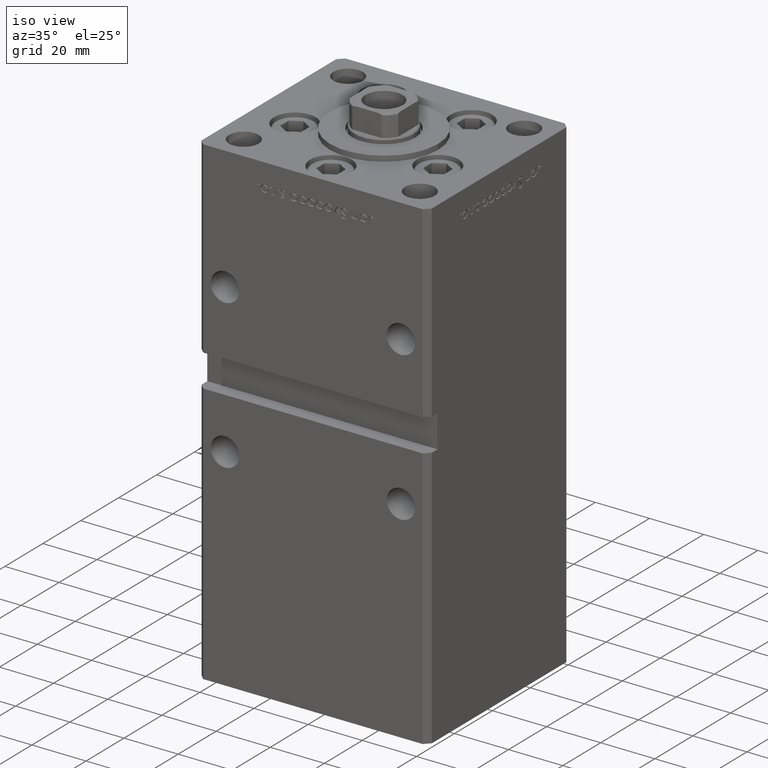
[diagram: clean part render]
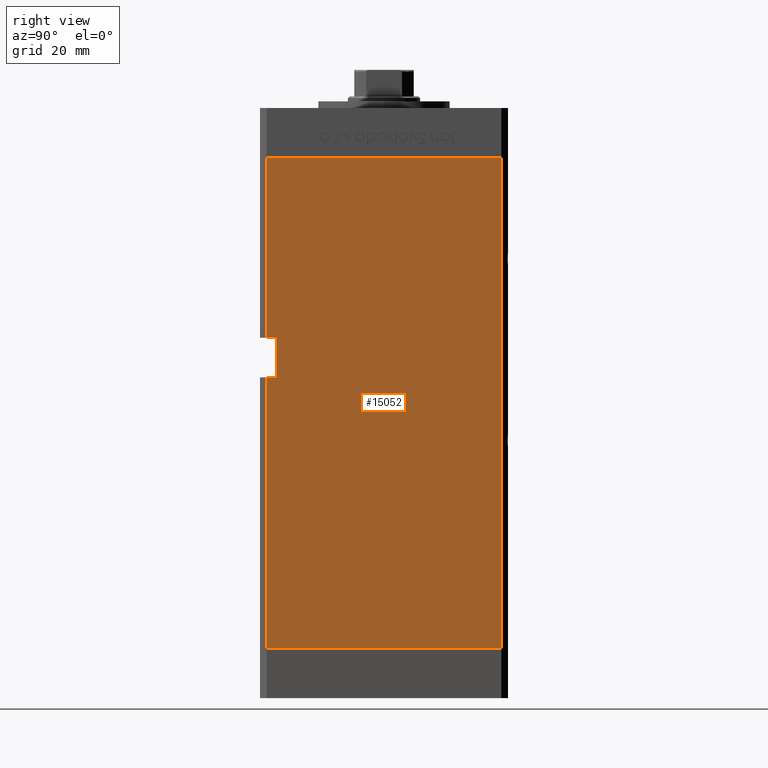
[diagram: tour spotlight — one face highlighted and labeled with its STEP entity id]
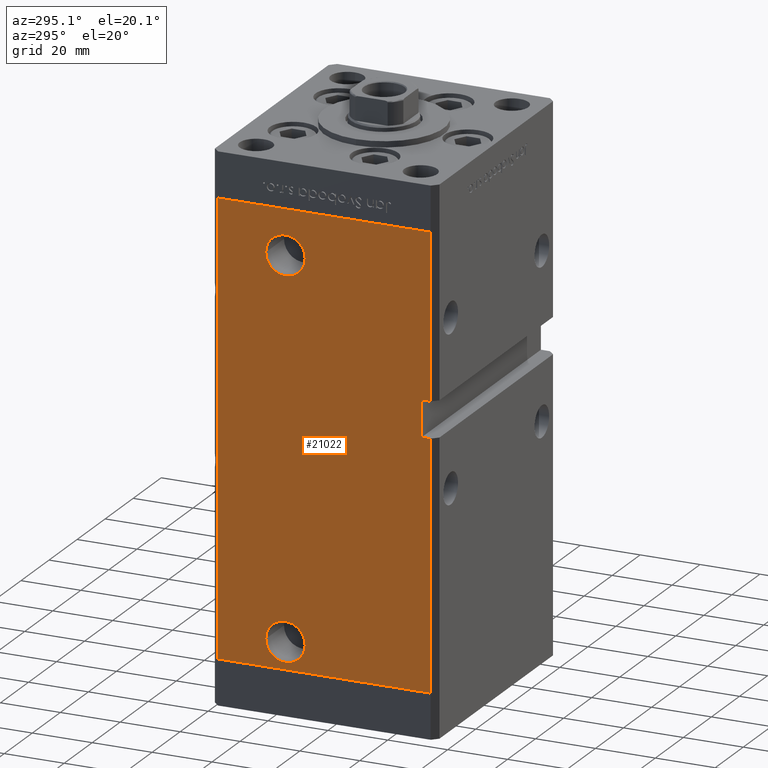
[diagram: tour spotlight — one face highlighted and labeled with its STEP entity id]
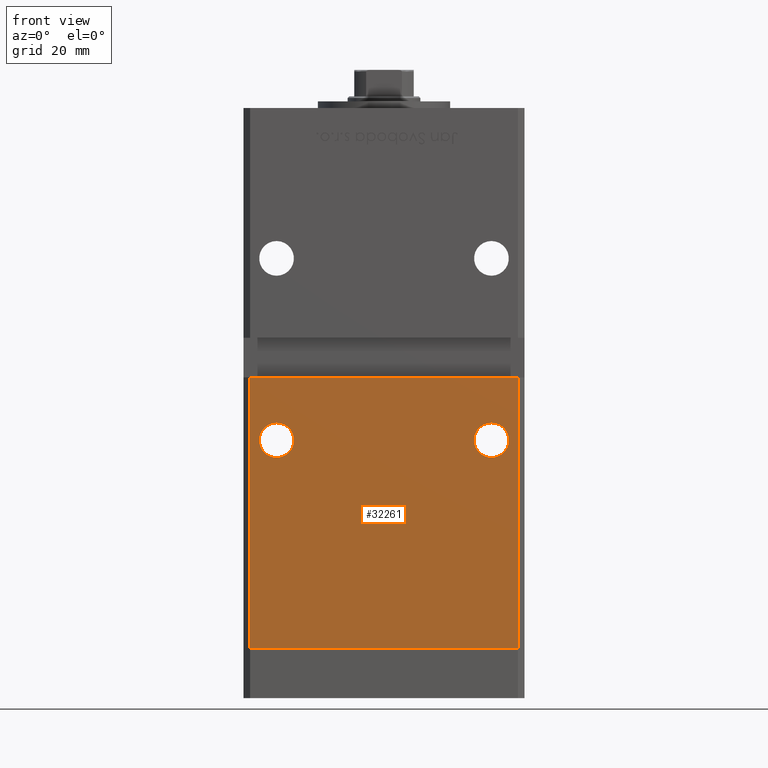
[diagram: tour spotlight — one face highlighted and labeled with its STEP entity id]
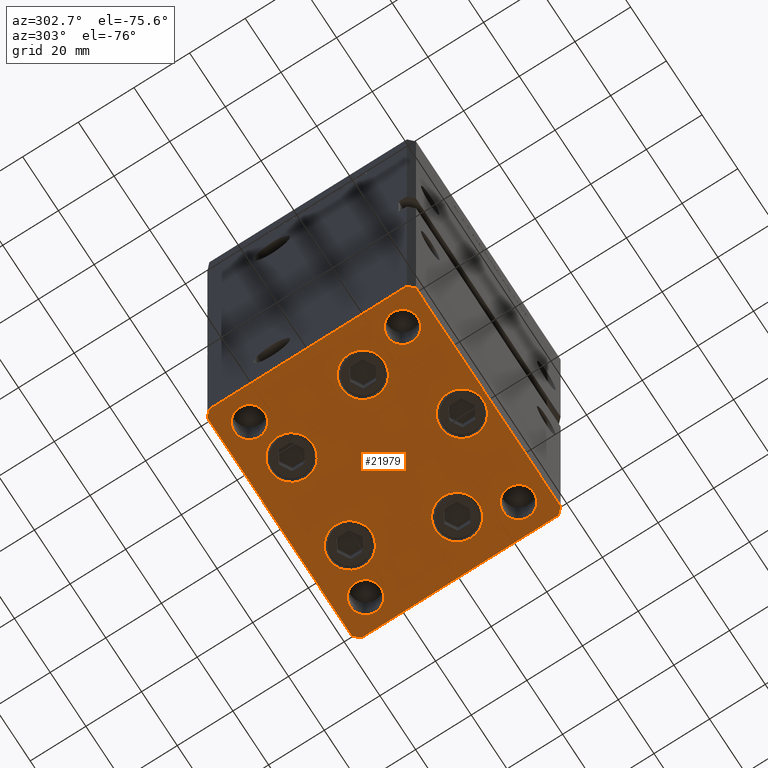
[diagram: tour spotlight — one face highlighted and labeled with its STEP entity id]
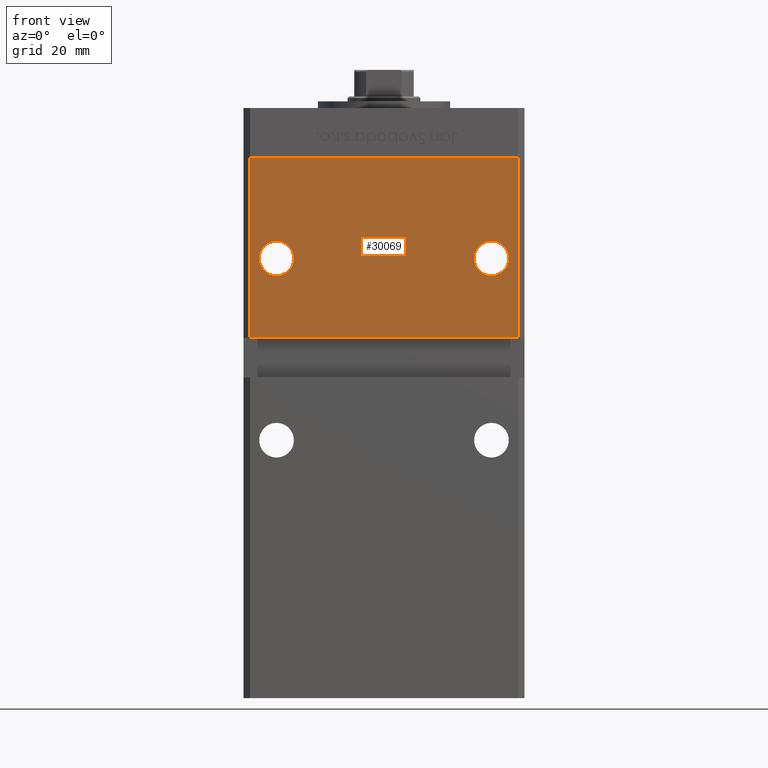
[diagram: tour spotlight — one face highlighted and labeled with its STEP entity id]
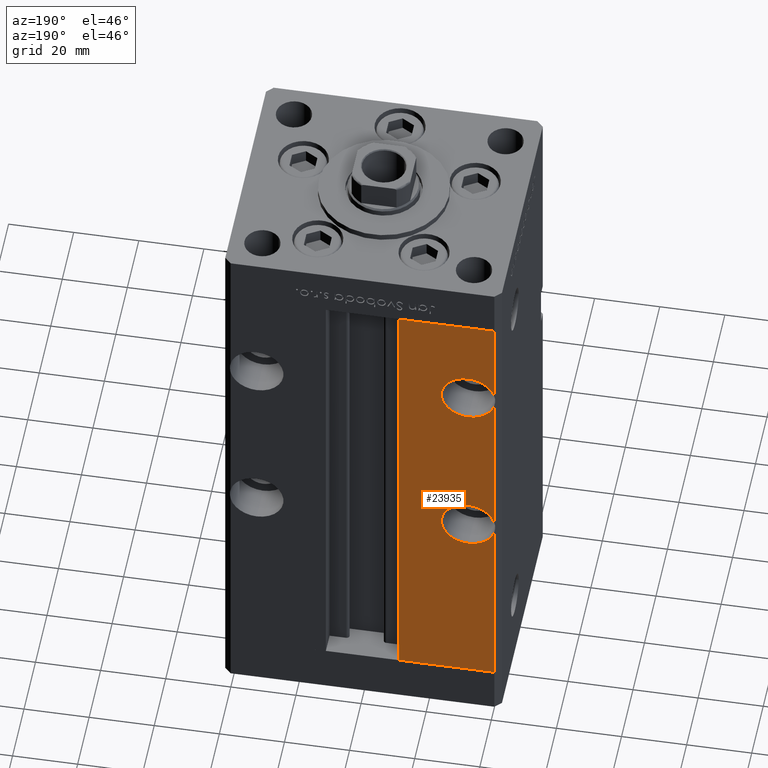
[diagram: tour spotlight — one face highlighted and labeled with its STEP entity id]
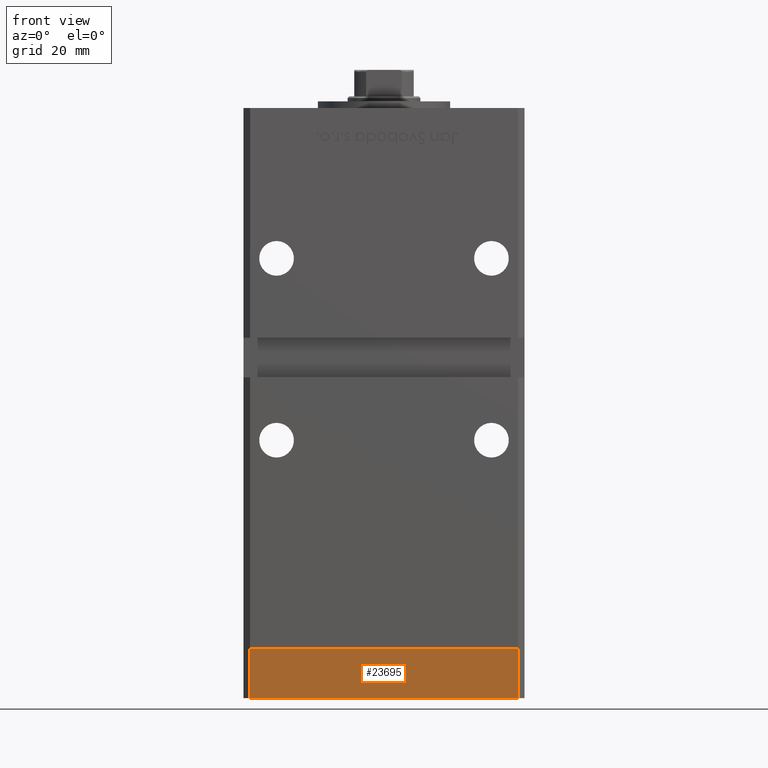
[diagram: tour spotlight — one face highlighted and labeled with its STEP entity id]
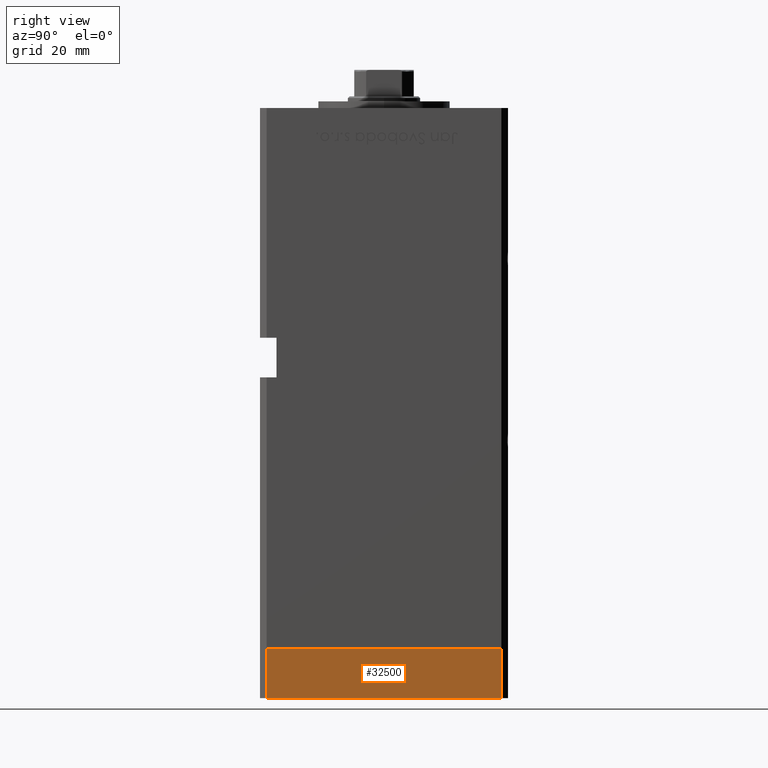
[diagram: tour spotlight — one face highlighted and labeled with its STEP entity id]
A machine part: a face-by-face anatomy tour. The part has 1212 B-rep faces; the first image is the clean iso view, then the 8 largest visible faces are spotlighted one at a time (largest first), each with its STEP entity span.

Face 1 — right view, entity #15052. In plain terms, the highlighted planar face has unit normal (1, -0, 0).
Definition (entity closure, byte-faithful):
#292 = VERTEX_POINT ( 'NONE', #15720 ) ;
#1259 = EDGE_CURVE ( 'NONE', #42159, #24671, #49125, .T. ) ;
#1748 = CARTESIAN_POINT ( 'NONE',  ( 42.49999999999998579, -32.50000000000000711, 94.00000000000000000 ) ) ;
#2326 = LINE ( 'NONE', #26767, #42533 ) ;
#2884 = CARTESIAN_POINT ( 'NONE',  ( 42.49999999999998579, -32.50000000000000711, 94.00000000000000000 ) ) ;
#5241 = DIRECTION ( 'NONE',  ( -0.000000000000000000, -0.000000000000000000, 1.000000000000000000 ) ) ;
#5278 = DIRECTION ( 'NONE',  ( -0.000000000000000000, -0.000000000000000000, -1.000000000000000000 ) ) ;
#6533 = VECTOR ( 'NONE', #9995, 1000.000000000000000 ) ;
#7225 = LINE ( 'NONE', #52367, #45514 ) ;
#8830 = DIRECTION ( 'NONE',  ( -0.000000000000000000, -1.000000000000000000, -0.000000000000000000 ) ) ;
#9366 = DIRECTION ( 'NONE',  ( -0.000000000000000000, -0.000000000000000000, -1.000000000000000000 ) ) ;
#9658 = ORIENTED_EDGE ( 'NONE', *, *, #19693, .T. ) ;
#9767 = EDGE_CURVE ( 'NONE', #41216, #24671, #52071, .T. ) ;
#9782 = VECTOR ( 'NONE', #8830, 1000.000000000000000 ) ;
#9995 = DIRECTION ( 'NONE',  ( -3.909236002201255146E-16, -1.000000000000000000, 0.000000000000000000 ) ) ;
#10001 = EDGE_CURVE ( 'NONE', #50865, #41216, #13578, .T. ) ;
#10551 = DIRECTION ( 'NONE',  ( 1.000000000000000000, -3.909236002201255146E-16, 0.000000000000000000 ) ) ;
#10823 = PLANE ( 'NONE',  #18363 ) ;
#12112 = CARTESIAN_POINT ( 'NONE',  ( 42.49999999999998579, -35.50000000000000711, 0.000000000000000000 ) ) ;
#12202 = VECTOR ( 'NONE', #18727, 1000.000000000000000 ) ;
#13578 = LINE ( 'NONE', #1748, #26819 ) ;
#14015 = ORIENTED_EDGE ( 'NONE', *, *, #48172, .T. ) ;
#15052 = ADVANCED_FACE ( 'NONE', ( #22629 ), #10823, .T. ) ;
#15720 = CARTESIAN_POINT ( 'NONE',  ( 42.50000000000001421, 35.50000000000000711, 0.000000000000000000 ) ) ;
#18006 = VERTEX_POINT ( 'NONE', #20407 ) ;
#18363 = AXIS2_PLACEMENT_3D ( 'NONE', #47910, #10551, #38483 ) ;
#18727 = DIRECTION ( 'NONE',  ( -0.000000000000000000, -1.000000000000000000, -0.000000000000000000 ) ) ;
#19270 = VERTEX_POINT ( 'NONE', #40510 ) ;
#19693 = EDGE_CURVE ( 'NONE', #19270, #42159, #26924, .T. ) ;
#19858 = VECTOR ( 'NONE', #9366, 1000.000000000000000 ) ;
#20407 = CARTESIAN_POINT ( 'NONE',  ( 42.49999999999998579, -35.50000000000000711, 82.00000000000000000 ) ) ;
#20641 = LINE ( 'NONE', #27987, #9782 ) ;
#22629 = FACE_OUTER_BOUND ( 'NONE', #33034, .T. ) ;
#23876 = ORIENTED_EDGE ( 'NONE', *, *, #32445, .F. ) ;
#24671 = VERTEX_POINT ( 'NONE', #32231 ) ;
#25433 = CARTESIAN_POINT ( 'NONE',  ( 42.49999999999998579, -32.50000000000000000, 82.00000000000000000 ) ) ;
#26171 = CARTESIAN_POINT ( 'NONE',  ( 42.49999999999998579, -32.50000000000000711, 94.00000000000000000 ) ) ;
#26767 = CARTESIAN_POINT ( 'NONE',  ( 42.49999999999998579, -35.50000000000000711, 148.5000000000000000 ) ) ;
#26819 = VECTOR ( 'NONE', #5241, 1000.000000000000000 ) ;
#26924 = LINE ( 'NONE', #38729, #6533 ) ;
#27379 = DIRECTION ( 'NONE',  ( -3.909236002201255146E-16, -1.000000000000000000, 0.000000000000000000 ) ) ;
#27987 = CARTESIAN_POINT ( 'NONE',  ( 42.49999999999998579, -32.50000000000000711, 82.00000000000000000 ) ) ;
#32231 = CARTESIAN_POINT ( 'NONE',  ( 42.49999999999998579, -35.50000000000000711, 94.00000000000000000 ) ) ;
#32445 = EDGE_CURVE ( 'NONE', #292, #38202, #7225, .T. ) ;
#32719 = VECTOR ( 'NONE', #41032, 1000.000000000000000 ) ;
#33034 = EDGE_LOOP ( 'NONE', ( #14015, #50217, #23876, #41219, #9658, #43903, #48736, #34665 ) ) ;
#33243 = CARTESIAN_POINT ( 'NONE',  ( 42.49999999999998579, -35.50000000000000711, 148.5000000000000000 ) ) ;
#34090 = CARTESIAN_POINT ( 'NONE',  ( 42.50000000000001421, 35.50000000000000711, 148.5000000000000000 ) ) ;
#34665 = ORIENTED_EDGE ( 'NONE', *, *, #10001, .F. ) ;
#36435 = EDGE_CURVE ( 'NONE', #19270, #292, #45662, .T. ) ;
#38202 = VERTEX_POINT ( 'NONE', #12112 ) ;
#38483 = DIRECTION ( 'NONE',  ( 3.909236002201255146E-16, 1.000000000000000000, 0.000000000000000000 ) ) ;
#38729 = CARTESIAN_POINT ( 'NONE',  ( 42.50000000000001421, 35.50000000000000711, 148.5000000000000000 ) ) ;
#40510 = CARTESIAN_POINT ( 'NONE',  ( 42.50000000000001421, 35.50000000000000711, 148.5000000000000000 ) ) ;
#41032 = DIRECTION ( 'NONE',  ( -0.000000000000000000, -0.000000000000000000, -1.000000000000000000 ) ) ;
#41216 = VERTEX_POINT ( 'NONE', #26171 ) ;
#41219 = ORIENTED_EDGE ( 'NONE', *, *, #36435, .F. ) ;
#42159 = VERTEX_POINT ( 'NONE', #53033 ) ;
#42533 = VECTOR ( 'NONE', #5278, 1000.000000000000000 ) ;
#43903 = ORIENTED_EDGE ( 'NONE', *, *, #1259, .T. ) ;
#45514 = VECTOR ( 'NONE', #27379, 1000.000000000000000 ) ;
#45662 = LINE ( 'NONE', #34090, #19858 ) ;
#47910 = CARTESIAN_POINT ( 'NONE',  ( 42.50000000000001421, 35.50000000000000711, 148.5000000000000000 ) ) ;
#48172 = EDGE_CURVE ( 'NONE', #50865, #18006, #20641, .T. ) ;
#48736 = ORIENTED_EDGE ( 'NONE', *, *, #9767, .F. ) ;
#49125 = LINE ( 'NONE', #33243, #32719 ) ;
#50217 = ORIENTED_EDGE ( 'NONE', *, *, #51881, .T. ) ;
#50865 = VERTEX_POINT ( 'NONE', #25433 ) ;
#51881 = EDGE_CURVE ( 'NONE', #18006, #38202, #2326, .T. ) ;
#52071 = LINE ( 'NONE', #2884, #12202 ) ;
#52367 = CARTESIAN_POINT ( 'NONE',  ( 42.50000000000001421, 35.50000000000000711, 0.000000000000000000 ) ) ;
#53033 = CARTESIAN_POINT ( 'NONE',  ( 42.49999999999998579, -35.50000000000000711, 148.5000000000000000 ) ) ;

Face 2 — auxiliary view, entity #21022. In plain terms, the highlighted planar face has unit normal (1, 0, 0).
Definition (entity closure, byte-faithful):
#562 = CARTESIAN_POINT ( 'NONE',  ( -42.49999999999998579, -35.50000000000000711, 148.5000000000000000 ) ) ;
#634 = CARTESIAN_POINT ( 'NONE',  ( -42.50000000000000000, 12.99999999999999467, 133.5000000000000000 ) ) ;
#727 = VECTOR ( 'NONE', #7967, 1000.000000000000000 ) ;
#948 = CARTESIAN_POINT ( 'NONE',  ( -42.49999999999998579, -32.50000000000000711, 94.00000000000000000 ) ) ;
#1238 = DIRECTION ( 'NONE',  ( -1.000000000000000000, -2.275047181608927644E-16, 0.000000000000000000 ) ) ;
#1608 = VECTOR ( 'NONE', #31775, 1000.000000000000000 ) ;
#2337 = ORIENTED_EDGE ( 'NONE', *, *, #26198, .F. ) ;
#2566 = CARTESIAN_POINT ( 'NONE',  ( -42.49999999999998579, -35.49999999999996447, 82.00000000000000000 ) ) ;
#2615 = EDGE_CURVE ( 'NONE', #41939, #39865, #2947, .T. ) ;
#2947 = LINE ( 'NONE', #15822, #3576 ) ;
#3041 = VERTEX_POINT ( 'NONE', #4732 ) ;
#3076 = ORIENTED_EDGE ( 'NONE', *, *, #38686, .F. ) ;
#3088 = EDGE_LOOP ( 'NONE', ( #8561, #39040 ) ) ;
#3279 = VECTOR ( 'NONE', #20731, 1000.000000000000000 ) ;
#3292 = CARTESIAN_POINT ( 'NONE',  ( -42.50000000000001421, 35.50000000000000711, 148.5000000000000000 ) ) ;
#3576 = VECTOR ( 'NONE', #40269, 1000.000000000000000 ) ;
#3909 = CARTESIAN_POINT ( 'NONE',  ( -42.50000000000000000, 12.99999999999999467, 133.5000000000000000 ) ) ;
#4089 = VERTEX_POINT ( 'NONE', #25610 ) ;
#4345 = EDGE_LOOP ( 'NONE', ( #23179, #2337 ) ) ;
#4378 = AXIS2_PLACEMENT_3D ( 'NONE', #634, #50624, #50359 ) ;
#4732 = CARTESIAN_POINT ( 'NONE',  ( -42.50000000000001421, 35.50000000000000711, 148.5000000000000000 ) ) ;
#6752 = CARTESIAN_POINT ( 'NONE',  ( -42.50000000000001421, 35.50000000000000711, 148.5000000000000000 ) ) ;
#6883 = EDGE_LOOP ( 'NONE', ( #3076, #39686, #21994, #41244, #36060, #41259, #17203, #50934 ) ) ;
#6979 = VERTEX_POINT ( 'NONE', #36243 ) ;
#7085 = EDGE_CURVE ( 'NONE', #25146, #36215, #38007, .T. ) ;
#7967 = DIRECTION ( 'NONE',  ( -0.000000000000000000, -1.000000000000000000, -0.000000000000000000 ) ) ;
#8561 = ORIENTED_EDGE ( 'NONE', *, *, #7085, .F. ) ;
#9553 = VECTOR ( 'NONE', #37386, 1000.000000000000000 ) ;
#10283 = CARTESIAN_POINT ( 'NONE',  ( -42.49999999999998579, -32.50000000000000711, 94.00000000000000000 ) ) ;
#10509 = DIRECTION ( 'NONE',  ( -3.909236002201255146E-16, 1.000000000000000000, 0.000000000000000000 ) ) ;
#11402 = DIRECTION ( 'NONE',  ( -0.000000000000000000, -0.000000000000000000, -1.000000000000000000 ) ) ;
#11446 = DIRECTION ( 'NONE',  ( 0.000000000000000000, -1.000000000000000000, 0.000000000000000000 ) ) ;
#12125 = CIRCLE ( 'NONE', #4378, 6.580000000000015170 ) ;
#12814 = DIRECTION ( 'NONE',  ( 0.000000000000000000, -1.000000000000000000, 0.000000000000000000 ) ) ;
#15822 = CARTESIAN_POINT ( 'NONE',  ( -42.50000000000001421, 35.50000000000000711, 0.000000000000000000 ) ) ;
#17203 = ORIENTED_EDGE ( 'NONE', *, *, #25696, .T. ) ;
#17743 = LINE ( 'NONE', #21774, #9553 ) ;
#20205 = LINE ( 'NONE', #49514, #3279 ) ;
#20731 = DIRECTION ( 'NONE',  ( -5.782411586589358625E-16, 0.000000000000000000, -1.000000000000000000 ) ) ;
#20747 = CARTESIAN_POINT ( 'NONE',  ( -42.49999999999998579, -35.50000000000000711, 148.5000000000000000 ) ) ;
#21022 = ADVANCED_FACE ( 'NONE', ( #47336, #47613, #22864 ), #27433, .F. ) ;
#21363 = LINE ( 'NONE', #948, #727 ) ;
#21774 = CARTESIAN_POINT ( 'NONE',  ( -42.49999999999998579, -32.50000000000000711, 82.00000000000000000 ) ) ;
#21994 = ORIENTED_EDGE ( 'NONE', *, *, #25938, .F. ) ;
#22858 = AXIS2_PLACEMENT_3D ( 'NONE', #6752, #39796, #10509 ) ;
#22864 = FACE_BOUND ( 'NONE', #3088, .T. ) ;
#23179 = ORIENTED_EDGE ( 'NONE', *, *, #50284, .F. ) ;
#23516 = VECTOR ( 'NONE', #50549, 1000.000000000000000 ) ;
#23868 = EDGE_CURVE ( 'NONE', #48786, #6979, #21363, .T. ) ;
#23903 = DIRECTION ( 'NONE',  ( -1.000000000000000000, -2.275047181608927644E-16, 0.000000000000000000 ) ) ;
#25084 = VECTOR ( 'NONE', #11402, 1000.000000000000000 ) ;
#25146 = VERTEX_POINT ( 'NONE', #35544 ) ;
#25610 = CARTESIAN_POINT ( 'NONE',  ( -42.49999999999998579, -32.50000000000000711, 82.00000000000000000 ) ) ;
#25696 = EDGE_CURVE ( 'NONE', #3041, #41939, #52869, .T. ) ;
#25938 = EDGE_CURVE ( 'NONE', #48786, #4089, #20205, .T. ) ;
#25952 = CARTESIAN_POINT ( 'NONE',  ( -42.50000000000000000, 12.99999999999999467, 9.000000000000007105 ) ) ;
#26198 = EDGE_CURVE ( 'NONE', #42681, #48277, #51310, .T. ) ;
#26516 = VECTOR ( 'NONE', #44798, 1000.000000000000000 ) ;
#26611 = CARTESIAN_POINT ( 'NONE',  ( -42.50000000000000000, 19.58000000000000895, 133.5000000000000000 ) ) ;
#26864 = AXIS2_PLACEMENT_3D ( 'NONE', #3909, #44753, #11446 ) ;
#27433 = PLANE ( 'NONE',  #22858 ) ;
#29041 = EDGE_CURVE ( 'NONE', #3041, #41366, #32044, .T. ) ;
#31775 = DIRECTION ( 'NONE',  ( 3.909236002201255146E-16, -1.000000000000000000, 0.000000000000000000 ) ) ;
#32044 = LINE ( 'NONE', #3292, #1608 ) ;
#32095 = CARTESIAN_POINT ( 'NONE',  ( -42.49999999999998579, -35.50000000000000711, 148.5000000000000000 ) ) ;
#33861 = CIRCLE ( 'NONE', #40724, 6.580000000000002736 ) ;
#34335 = CARTESIAN_POINT ( 'NONE',  ( -42.50000000000000000, 6.419999999999991935, 9.000000000000007105 ) ) ;
#34763 = VERTEX_POINT ( 'NONE', #2566 ) ;
#35221 = DIRECTION ( 'NONE',  ( 0.000000000000000000, -1.000000000000000000, 0.000000000000000000 ) ) ;
#35544 = CARTESIAN_POINT ( 'NONE',  ( -42.50000000000000000, 6.419999999999978613, 133.5000000000000000 ) ) ;
#35672 = EDGE_CURVE ( 'NONE', #36215, #25146, #12125, .T. ) ;
#36060 = ORIENTED_EDGE ( 'NONE', *, *, #48957, .F. ) ;
#36070 = EDGE_CURVE ( 'NONE', #4089, #34763, #17743, .T. ) ;
#36215 = VERTEX_POINT ( 'NONE', #26611 ) ;
#36243 = CARTESIAN_POINT ( 'NONE',  ( -42.49999999999998579, -35.50000000000001421, 94.00000000000000000 ) ) ;
#37386 = DIRECTION ( 'NONE',  ( -0.000000000000000000, -1.000000000000000000, -0.000000000000000000 ) ) ;
#38007 = CIRCLE ( 'NONE', #26864, 6.580000000000015170 ) ;
#38426 = AXIS2_PLACEMENT_3D ( 'NONE', #51903, #23903, #35221 ) ;
#38686 = EDGE_CURVE ( 'NONE', #34763, #39865, #43932, .T. ) ;
#39040 = ORIENTED_EDGE ( 'NONE', *, *, #35672, .F. ) ;
#39686 = ORIENTED_EDGE ( 'NONE', *, *, #36070, .F. ) ;
#39796 = DIRECTION ( 'NONE',  ( 1.000000000000000000, 3.909236002201255146E-16, -0.000000000000000000 ) ) ;
#39865 = VERTEX_POINT ( 'NONE', #48829 ) ;
#40269 = DIRECTION ( 'NONE',  ( 3.909236002201255146E-16, -1.000000000000000000, 0.000000000000000000 ) ) ;
#40724 = AXIS2_PLACEMENT_3D ( 'NONE', #25952, #1238, #12814 ) ;
#41244 = ORIENTED_EDGE ( 'NONE', *, *, #23868, .T. ) ;
#41259 = ORIENTED_EDGE ( 'NONE', *, *, #29041, .F. ) ;
#41366 = VERTEX_POINT ( 'NONE', #20747 ) ;
#41939 = VERTEX_POINT ( 'NONE', #42573 ) ;
#42573 = CARTESIAN_POINT ( 'NONE',  ( -42.50000000000001421, 35.50000000000000711, 0.000000000000000000 ) ) ;
#42681 = VERTEX_POINT ( 'NONE', #44839 ) ;
#43932 = LINE ( 'NONE', #32095, #25084 ) ;
#44753 = DIRECTION ( 'NONE',  ( -1.000000000000000000, -2.275047181608927644E-16, 0.000000000000000000 ) ) ;
#44798 = DIRECTION ( 'NONE',  ( -0.000000000000000000, -0.000000000000000000, -1.000000000000000000 ) ) ;
#44839 = CARTESIAN_POINT ( 'NONE',  ( -42.50000000000000000, 19.57999999999999829, 9.000000000000007105 ) ) ;
#46246 = LINE ( 'NONE', #562, #23516 ) ;
#47336 = FACE_OUTER_BOUND ( 'NONE', #6883, .T. ) ;
#47613 = FACE_BOUND ( 'NONE', #4345, .T. ) ;
#48277 = VERTEX_POINT ( 'NONE', #34335 ) ;
#48786 = VERTEX_POINT ( 'NONE', #10283 ) ;
#48829 = CARTESIAN_POINT ( 'NONE',  ( -42.49999999999998579, -35.50000000000000711, 0.000000000000000000 ) ) ;
#48957 = EDGE_CURVE ( 'NONE', #41366, #6979, #46246, .T. ) ;
#49514 = CARTESIAN_POINT ( 'NONE',  ( -42.49999999999998579, -32.50000000000000711, 94.00000000000000000 ) ) ;
#50284 = EDGE_CURVE ( 'NONE', #48277, #42681, #33861, .T. ) ;
#50359 = DIRECTION ( 'NONE',  ( 0.000000000000000000, -1.000000000000000000, 0.000000000000000000 ) ) ;
#50549 = DIRECTION ( 'NONE',  ( -0.000000000000000000, -0.000000000000000000, -1.000000000000000000 ) ) ;
#50624 = DIRECTION ( 'NONE',  ( -1.000000000000000000, -2.275047181608927644E-16, 0.000000000000000000 ) ) ;
#50934 = ORIENTED_EDGE ( 'NONE', *, *, #2615, .T. ) ;
#51310 = CIRCLE ( 'NONE', #38426, 6.580000000000002736 ) ;
#51903 = CARTESIAN_POINT ( 'NONE',  ( -42.50000000000000000, 12.99999999999999467, 9.000000000000007105 ) ) ;
#52603 = CARTESIAN_POINT ( 'NONE',  ( -42.50000000000001421, 35.50000000000000711, 148.5000000000000000 ) ) ;
#52869 = LINE ( 'NONE', #52603, #26516 ) ;

Face 3 — front view, entity #32261. In plain terms, the highlighted planar face has unit normal (0, 1, 0).
Definition (entity closure, byte-faithful):
#49 = DIRECTION ( 'NONE',  ( 1.000000000000000000, 0.000000000000000000, 0.000000000000000000 ) ) ;
#312 = CARTESIAN_POINT ( 'NONE',  ( -32.50000000000000000, -37.50000000000000711, 57.75000000000000000 ) ) ;
#3508 = DIRECTION ( 'NONE',  ( -0.000000000000000000, -0.000000000000000000, -1.000000000000000000 ) ) ;
#3765 = VERTEX_POINT ( 'NONE', #29984 ) ;
#3990 = VECTOR ( 'NONE', #40974, 1000.000000000000000 ) ;
#4336 = EDGE_CURVE ( 'NONE', #15540, #26675, #27623, .T. ) ;
#4372 = PLANE ( 'NONE',  #37776 ) ;
#4840 = DIRECTION ( 'NONE',  ( 0.000000000000000000, 0.000000000000000000, 1.000000000000000000 ) ) ;
#5032 = ORIENTED_EDGE ( 'NONE', *, *, #23274, .T. ) ;
#5901 = DIRECTION ( 'NONE',  ( -0.000000000000000000, -0.000000000000000000, -1.000000000000000000 ) ) ;
#6963 = EDGE_LOOP ( 'NONE', ( #5032, #52915 ) ) ;
#7997 = ORIENTED_EDGE ( 'NONE', *, *, #4336, .T. ) ;
#8689 = EDGE_LOOP ( 'NONE', ( #14334, #7997 ) ) ;
#8910 = EDGE_CURVE ( 'NONE', #51913, #46034, #11625, .T. ) ;
#9100 = CARTESIAN_POINT ( 'NONE',  ( 32.50000000000000000, -37.50000000000000711, 57.75000000000000711 ) ) ;
#10931 = EDGE_LOOP ( 'NONE', ( #25495, #43764, #45705, #23224 ) ) ;
#11625 = LINE ( 'NONE', #36860, #32047 ) ;
#14334 = ORIENTED_EDGE ( 'NONE', *, *, #16488, .T. ) ;
#15540 = VERTEX_POINT ( 'NONE', #9100 ) ;
#16488 = EDGE_CURVE ( 'NONE', #26675, #15540, #38154, .T. ) ;
#20052 = EDGE_CURVE ( 'NONE', #48095, #46034, #42713, .T. ) ;
#21338 = DIRECTION ( 'NONE',  ( 0.000000000000000000, 0.000000000000000000, 1.000000000000000000 ) ) ;
#21485 = EDGE_CURVE ( 'NONE', #3765, #48095, #24848, .T. ) ;
#21984 = EDGE_CURVE ( 'NONE', #3765, #51913, #50838, .T. ) ;
#22534 = FACE_BOUND ( 'NONE', #8689, .T. ) ;
#23224 = ORIENTED_EDGE ( 'NONE', *, *, #8910, .T. ) ;
#23274 = EDGE_CURVE ( 'NONE', #24261, #49597, #29854, .T. ) ;
#23737 = VECTOR ( 'NONE', #3508, 1000.000000000000000 ) ;
#24261 = VERTEX_POINT ( 'NONE', #35536 ) ;
#24431 = AXIS2_PLACEMENT_3D ( 'NONE', #30856, #42409, #30049 ) ;
#24848 = LINE ( 'NONE', #45816, #3990 ) ;
#25495 = ORIENTED_EDGE ( 'NONE', *, *, #20052, .F. ) ;
#26364 = CARTESIAN_POINT ( 'NONE',  ( -40.49999999999998579, -37.50000000000000711, 148.5000000000000000 ) ) ;
#26675 = VERTEX_POINT ( 'NONE', #50326 ) ;
#27179 = DIRECTION ( 'NONE',  ( 0.000000000000000000, 1.000000000000000000, 0.000000000000000000 ) ) ;
#27623 = CIRCLE ( 'NONE', #41349, 5.249999999999991118 ) ;
#27690 = AXIS2_PLACEMENT_3D ( 'NONE', #47616, #27179, #43575 ) ;
#27957 = VECTOR ( 'NONE', #5901, 1000.000000000000000 ) ;
#29854 = CIRCLE ( 'NONE', #39337, 5.249999999999991118 ) ;
#29984 = CARTESIAN_POINT ( 'NONE',  ( -40.49999999999998579, -37.50000000000000711, 82.00000000000000000 ) ) ;
#30049 = DIRECTION ( 'NONE',  ( 0.000000000000000000, 0.000000000000000000, 1.000000000000000000 ) ) ;
#30273 = CARTESIAN_POINT ( 'NONE',  ( -40.49999999999998579, -37.50000000000000711, 0.000000000000000000 ) ) ;
#30856 = CARTESIAN_POINT ( 'NONE',  ( 32.50000000000000000, -37.50000000000000711, 63.00000000000000000 ) ) ;
#32047 = VECTOR ( 'NONE', #49, 1000.000000000000000 ) ;
#32261 = ADVANCED_FACE ( 'NONE', ( #49534, #22534, #42434 ), #4372, .F. ) ;
#32924 = DIRECTION ( 'NONE',  ( 0.000000000000000000, 1.000000000000000000, 0.000000000000000000 ) ) ;
#34373 = DIRECTION ( 'NONE',  ( 0.000000000000000000, -0.000000000000000000, 1.000000000000000000 ) ) ;
#34913 = DIRECTION ( 'NONE',  ( 0.000000000000000000, 1.000000000000000000, 0.000000000000000000 ) ) ;
#35536 = CARTESIAN_POINT ( 'NONE',  ( -32.50000000000000000, -37.50000000000000711, 68.24999999999998579 ) ) ;
#36860 = CARTESIAN_POINT ( 'NONE',  ( -40.49999999999998579, -37.50000000000000711, 0.000000000000000000 ) ) ;
#37412 = CARTESIAN_POINT ( 'NONE',  ( -40.49999999999998579, -37.50000000000000711, 148.5000000000000000 ) ) ;
#37776 = AXIS2_PLACEMENT_3D ( 'NONE', #37412, #34913, #34373 ) ;
#38154 = CIRCLE ( 'NONE', #24431, 5.249999999999991118 ) ;
#39337 = AXIS2_PLACEMENT_3D ( 'NONE', #52961, #41647, #4840 ) ;
#40774 = CARTESIAN_POINT ( 'NONE',  ( 40.49999999999998579, -37.50000000000000711, 0.000000000000000000 ) ) ;
#40974 = DIRECTION ( 'NONE',  ( 1.000000000000000000, 0.000000000000000000, 0.000000000000000000 ) ) ;
#41349 = AXIS2_PLACEMENT_3D ( 'NONE', #49851, #32924, #21338 ) ;
#41647 = DIRECTION ( 'NONE',  ( 0.000000000000000000, 1.000000000000000000, 0.000000000000000000 ) ) ;
#42409 = DIRECTION ( 'NONE',  ( 0.000000000000000000, 1.000000000000000000, 0.000000000000000000 ) ) ;
#42434 = FACE_OUTER_BOUND ( 'NONE', #10931, .T. ) ;
#42713 = LINE ( 'NONE', #42977, #27957 ) ;
#42977 = CARTESIAN_POINT ( 'NONE',  ( 40.49999999999998579, -37.50000000000000711, 148.5000000000000000 ) ) ;
#43575 = DIRECTION ( 'NONE',  ( 0.000000000000000000, 0.000000000000000000, 1.000000000000000000 ) ) ;
#43764 = ORIENTED_EDGE ( 'NONE', *, *, #21485, .F. ) ;
#44530 = EDGE_CURVE ( 'NONE', #49597, #24261, #48308, .T. ) ;
#45705 = ORIENTED_EDGE ( 'NONE', *, *, #21984, .T. ) ;
#45816 = CARTESIAN_POINT ( 'NONE',  ( -42.49999999999998579, -37.50000000000000711, 82.00000000000000000 ) ) ;
#46034 = VERTEX_POINT ( 'NONE', #40774 ) ;
#47616 = CARTESIAN_POINT ( 'NONE',  ( -32.50000000000000000, -37.50000000000000711, 63.00000000000000000 ) ) ;
#48095 = VERTEX_POINT ( 'NONE', #49938 ) ;
#48308 = CIRCLE ( 'NONE', #27690, 5.249999999999991118 ) ;
#49534 = FACE_BOUND ( 'NONE', #6963, .T. ) ;
#49597 = VERTEX_POINT ( 'NONE', #312 ) ;
#49851 = CARTESIAN_POINT ( 'NONE',  ( 32.50000000000000000, -37.50000000000000711, 63.00000000000000000 ) ) ;
#49938 = CARTESIAN_POINT ( 'NONE',  ( 40.49999999999998579, -37.50000000000000711, 82.00000000000000000 ) ) ;
#50326 = CARTESIAN_POINT ( 'NONE',  ( 32.50000000000000000, -37.50000000000000711, 68.24999999999998579 ) ) ;
#50838 = LINE ( 'NONE', #26364, #23737 ) ;
#51913 = VERTEX_POINT ( 'NONE', #30273 ) ;
#52915 = ORIENTED_EDGE ( 'NONE', *, *, #44530, .T. ) ;
#52961 = CARTESIAN_POINT ( 'NONE',  ( -32.50000000000000000, -37.50000000000000711, 63.00000000000000000 ) ) ;

Face 4 — auxiliary view, entity #21979. In plain terms, the highlighted planar face has unit normal (0, 0, -1).
Definition (entity closure, byte-faithful):
#39 = CIRCLE ( 'NONE', #44702, 7.750000000000003553 ) ;
#112 = DIRECTION ( 'NONE',  ( 0.000000000000000000, -0.000000000000000000, -1.000000000000000000 ) ) ;
#238 = VERTEX_POINT ( 'NONE', #22727 ) ;
#800 = CARTESIAN_POINT ( 'NONE',  ( 3.429011037612589276E-15, -28.00000000000000000, 0.000000000000000000 ) ) ;
#811 = EDGE_CURVE ( 'NONE', #8159, #238, #39, .T. ) ;
#1085 = CARTESIAN_POINT ( 'NONE',  ( -27.00000000000000355, -27.49999999999999645, 0.000000000000000000 ) ) ;
#1128 = CARTESIAN_POINT ( 'NONE',  ( 42.50000000000000711, -35.50000000000000000, 0.000000000000000000 ) ) ;
#1148 = LINE ( 'NONE', #17265, #48122 ) ;
#1916 = FACE_OUTER_BOUND ( 'NONE', #6458, .T. ) ;
#2082 = AXIS2_PLACEMENT_3D ( 'NONE', #18665, #14647, #21039 ) ;
#2195 = DIRECTION ( 'NONE',  ( 1.000000000000000000, 0.000000000000000000, 0.000000000000000000 ) ) ;
#2472 = CIRCLE ( 'NONE', #32493, 5.499999999999998224 ) ;
#2646 = CARTESIAN_POINT ( 'NONE',  ( -34.14865316429776954, -9.333333333333337478, 0.000000000000000000 ) ) ;
#2662 = DIRECTION ( 'NONE',  ( -0.000000000000000000, 0.000000000000000000, 1.000000000000000000 ) ) ;
#2821 = AXIS2_PLACEMENT_3D ( 'NONE', #49084, #28650, #52845 ) ;
#2873 = VERTEX_POINT ( 'NONE', #42922 ) ;
#3128 = CARTESIAN_POINT ( 'NONE',  ( 26.39865316429776954, -9.333333333333330373, 0.000000000000000000 ) ) ;
#4017 = CARTESIAN_POINT ( 'NONE',  ( 18.64865316429776954, -9.333333333333330373, 0.000000000000000000 ) ) ;
#4468 = CARTESIAN_POINT ( 'NONE',  ( 42.49999999999992895, 35.50000000000000000, 0.000000000000000000 ) ) ;
#4497 = AXIS2_PLACEMENT_3D ( 'NONE', #800, #45180, #8091 ) ;
#4559 = VERTEX_POINT ( 'NONE', #27512 ) ;
#4612 = CARTESIAN_POINT ( 'NONE',  ( 24.07291334290542650, 22.75000000000000000, 0.000000000000000000 ) ) ;
#4725 = ORIENTED_EDGE ( 'NONE', *, *, #14678, .F. ) ;
#4782 = LINE ( 'NONE', #21161, #34262 ) ;
#5071 = CIRCLE ( 'NONE', #42818, 7.750000000000003553 ) ;
#5141 = CIRCLE ( 'NONE', #38580, 7.750000000000000000 ) ;
#5467 = DIRECTION ( 'NONE',  ( 0.000000000000000000, -0.000000000000000000, -1.000000000000000000 ) ) ;
#5598 = VECTOR ( 'NONE', #23781, 1000.000000000000000 ) ;
#5601 = CIRCLE ( 'NONE', #36471, 5.499999999999998224 ) ;
#5752 = EDGE_CURVE ( 'NONE', #14941, #48692, #22511, .T. ) ;
#6458 = EDGE_LOOP ( 'NONE', ( #36790, #13424, #16841, #45121, #18756, #13358, #11757, #25450 ) ) ;
#6789 = CARTESIAN_POINT ( 'NONE',  ( -26.39865316429776954, -9.333333333333337478, 0.000000000000000000 ) ) ;
#6882 = AXIS2_PLACEMENT_3D ( 'NONE', #32198, #2662, #44040 ) ;
#7084 = EDGE_CURVE ( 'NONE', #2873, #42705, #43973, .T. ) ;
#7145 = LINE ( 'NONE', #15204, #5598 ) ;
#7254 = DIRECTION ( 'NONE',  ( 1.000000000000000000, 0.000000000000000000, 0.000000000000000000 ) ) ;
#7258 = CIRCLE ( 'NONE', #51035, 7.750000000000000000 ) ;
#7269 = EDGE_CURVE ( 'NONE', #34507, #49842, #12282, .T. ) ;
#7345 = CARTESIAN_POINT ( 'NONE',  ( -8.572913342905431833, 22.74999999999999645, 0.000000000000000000 ) ) ;
#7515 = DIRECTION ( 'NONE',  ( 0.000000000000000000, -0.000000000000000000, -1.000000000000000000 ) ) ;
#7792 = CARTESIAN_POINT ( 'NONE',  ( 16.32291334290542295, 22.75000000000000000, 0.000000000000000000 ) ) ;
#7951 = EDGE_CURVE ( 'NONE', #9584, #8139, #17443, .T. ) ;
#8027 = AXIS2_PLACEMENT_3D ( 'NONE', #42276, #5467, #21840 ) ;
#8091 = DIRECTION ( 'NONE',  ( 1.000000000000000000, 0.000000000000000000, 0.000000000000000000 ) ) ;
#8139 = VERTEX_POINT ( 'NONE', #17739 ) ;
#8159 = VERTEX_POINT ( 'NONE', #4612 ) ;
#8324 = CARTESIAN_POINT ( 'NONE',  ( 3.429011037612589276E-15, -28.00000000000000000, 0.000000000000000000 ) ) ;
#8334 = CARTESIAN_POINT ( 'NONE',  ( -27.00000000000000355, 27.50000000000000355, 0.000000000000000000 ) ) ;
#8354 = CARTESIAN_POINT ( 'NONE',  ( 42.50000000000000711, -35.50000000000000000, 0.000000000000000000 ) ) ;
#9584 = VERTEX_POINT ( 'NONE', #7345 ) ;
#9718 = FACE_BOUND ( 'NONE', #31361, .T. ) ;
#9741 = ORIENTED_EDGE ( 'NONE', *, *, #7269, .T. ) ;
#9852 = CIRCLE ( 'NONE', #45083, 5.499999999999998224 ) ;
#10139 = AXIS2_PLACEMENT_3D ( 'NONE', #33551, #26286, #18212 ) ;
#10518 = FACE_BOUND ( 'NONE', #13668, .T. ) ;
#10654 = DIRECTION ( 'NONE',  ( 1.000000000000000000, 0.000000000000000000, 0.000000000000000000 ) ) ;
#10728 = EDGE_LOOP ( 'NONE', ( #15078, #9741 ) ) ;
#11268 = VERTEX_POINT ( 'NONE', #1085 ) ;
#11303 = DIRECTION ( 'NONE',  ( 1.000000000000000000, 0.000000000000000000, 0.000000000000000000 ) ) ;
#11757 = ORIENTED_EDGE ( 'NONE', *, *, #51017, .T. ) ;
#11946 = VECTOR ( 'NONE', #15837, 1000.000000000000000 ) ;
#11968 = DIRECTION ( 'NONE',  ( 1.000000000000000000, 1.713307136767217096E-16, 0.000000000000000000 ) ) ;
#12282 = CIRCLE ( 'NONE', #42311, 7.750000000000000000 ) ;
#12497 = CARTESIAN_POINT ( 'NONE',  ( 32.50000000000000000, -27.49999999999999645, 0.000000000000000000 ) ) ;
#12961 = LINE ( 'NONE', #1128, #48265 ) ;
#13034 = VERTEX_POINT ( 'NONE', #46471 ) ;
#13231 = DIRECTION ( 'NONE',  ( -1.172770800660376741E-15, 1.000000000000000000, 0.000000000000000000 ) ) ;
#13289 = DIRECTION ( 'NONE',  ( 1.000000000000000000, 0.000000000000000000, 0.000000000000000000 ) ) ;
#13358 = ORIENTED_EDGE ( 'NONE', *, *, #24665, .T. ) ;
#13424 = ORIENTED_EDGE ( 'NONE', *, *, #7084, .T. ) ;
#13518 = CARTESIAN_POINT ( 'NONE',  ( -7.749999999999996447, -28.00000000000000000, 0.000000000000000000 ) ) ;
#13668 = EDGE_LOOP ( 'NONE', ( #25131, #50411 ) ) ;
#13739 = FACE_BOUND ( 'NONE', #19425, .T. ) ;
#13772 = CARTESIAN_POINT ( 'NONE',  ( 7.750000000000003553, -28.00000000000000000, 0.000000000000000000 ) ) ;
#14546 = FACE_BOUND ( 'NONE', #31159, .T. ) ;
#14647 = DIRECTION ( 'NONE',  ( -0.000000000000000000, 0.000000000000000000, 1.000000000000000000 ) ) ;
#14678 = EDGE_CURVE ( 'NONE', #19129, #45703, #14974, .T. ) ;
#14941 = VERTEX_POINT ( 'NONE', #13772 ) ;
#14974 = CIRCLE ( 'NONE', #2082, 5.499999999999998224 ) ;
#15078 = ORIENTED_EDGE ( 'NONE', *, *, #16228, .T. ) ;
#15112 = EDGE_CURVE ( 'NONE', #44045, #25334, #31281, .T. ) ;
#15204 = CARTESIAN_POINT ( 'NONE',  ( -40.50000000000000711, 37.49999999999997868, 0.000000000000000000 ) ) ;
#15734 = DIRECTION ( 'NONE',  ( 1.000000000000000000, 0.000000000000000000, 0.000000000000000000 ) ) ;
#15768 = LINE ( 'NONE', #4468, #16339 ) ;
#15797 = AXIS2_PLACEMENT_3D ( 'NONE', #6789, #50870, #42527 ) ;
#15837 = DIRECTION ( 'NONE',  ( -1.000000000000000000, -3.426614273534436165E-16, 0.000000000000000000 ) ) ;
#15904 = CARTESIAN_POINT ( 'NONE',  ( 32.50000000000000000, -27.49999999999999645, 0.000000000000000000 ) ) ;
#16097 = DIRECTION ( 'NONE',  ( 1.000000000000000000, 0.000000000000000000, 0.000000000000000000 ) ) ;
#16228 = EDGE_CURVE ( 'NONE', #49842, #34507, #7258, .T. ) ;
#16288 = CARTESIAN_POINT ( 'NONE',  ( 38.00000000000000000, 27.49999999999999645, 0.000000000000000000 ) ) ;
#16339 = VECTOR ( 'NONE', #20847, 1000.000000000000114 ) ;
#16584 = ORIENTED_EDGE ( 'NONE', *, *, #5752, .T. ) ;
#16841 = ORIENTED_EDGE ( 'NONE', *, *, #33721, .T. ) ;
#17265 = CARTESIAN_POINT ( 'NONE',  ( 40.50000000000000000, -37.50000000000000711, 0.000000000000000000 ) ) ;
#17443 = CIRCLE ( 'NONE', #8027, 7.750000000000000000 ) ;
#17739 = CARTESIAN_POINT ( 'NONE',  ( -24.07291334290543006, 22.74999999999999645, 0.000000000000000000 ) ) ;
#17995 = ORIENTED_EDGE ( 'NONE', *, *, #35621, .T. ) ;
#18151 = EDGE_CURVE ( 'NONE', #45703, #19129, #5601, .T. ) ;
#18212 = DIRECTION ( 'NONE',  ( 1.000000000000000000, 0.000000000000000000, 0.000000000000000000 ) ) ;
#18665 = CARTESIAN_POINT ( 'NONE',  ( -32.50000000000000000, 27.50000000000000355, 0.000000000000000000 ) ) ;
#18670 = DIRECTION ( 'NONE',  ( 0.000000000000000000, -0.000000000000000000, -1.000000000000000000 ) ) ;
#18756 = ORIENTED_EDGE ( 'NONE', *, *, #34553, .T. ) ;
#19019 = ORIENTED_EDGE ( 'NONE', *, *, #7951, .T. ) ;
#19129 = VERTEX_POINT ( 'NONE', #34374 ) ;
#19425 = EDGE_LOOP ( 'NONE', ( #35018, #4725 ) ) ;
#20203 = ORIENTED_EDGE ( 'NONE', *, *, #32375, .F. ) ;
#20428 = VERTEX_POINT ( 'NONE', #37465 ) ;
#20847 = DIRECTION ( 'NONE',  ( -0.7071067811865474617, 0.7071067811865474617, 0.000000000000000000 ) ) ;
#21039 = DIRECTION ( 'NONE',  ( 1.000000000000000000, 0.000000000000000000, 0.000000000000000000 ) ) ;
#21145 = EDGE_CURVE ( 'NONE', #48692, #14941, #36588, .T. ) ;
#21161 = CARTESIAN_POINT ( 'NONE',  ( -42.50000000000000711, 35.49999999999997158, 0.000000000000000000 ) ) ;
#21793 = FACE_BOUND ( 'NONE', #10728, .T. ) ;
#21840 = DIRECTION ( 'NONE',  ( 1.000000000000000000, 0.000000000000000000, 0.000000000000000000 ) ) ;
#21979 = ADVANCED_FACE ( 'NONE', ( #14546, #34705, #21793, #30941, #47069, #9718, #10518, #13739, #1916, #38192 ), #22596, .T. ) ;
#22224 = ORIENTED_EDGE ( 'NONE', *, *, #26416, .T. ) ;
#22511 = CIRCLE ( 'NONE', #4497, 7.750000000000000000 ) ;
#22596 = PLANE ( 'NONE',  #46926 ) ;
#22727 = CARTESIAN_POINT ( 'NONE',  ( 8.572913342905422951, 22.75000000000000000, 0.000000000000000000 ) ) ;
#23773 = VERTEX_POINT ( 'NONE', #25714 ) ;
#23781 = DIRECTION ( 'NONE',  ( -0.7071067811865463515, -0.7071067811865487940, 0.000000000000000000 ) ) ;
#23816 = VERTEX_POINT ( 'NONE', #16288 ) ;
#23999 = LINE ( 'NONE', #44438, #35223 ) ;
#24323 = DIRECTION ( 'NONE',  ( -0.000000000000000000, 0.000000000000000000, 1.000000000000000000 ) ) ;
#24324 = CARTESIAN_POINT ( 'NONE',  ( -40.49999999999999289, -37.50000000000002132, 0.000000000000000000 ) ) ;
#24567 = EDGE_CURVE ( 'NONE', #238, #8159, #5071, .T. ) ;
#24620 = CARTESIAN_POINT ( 'NONE',  ( 34.14865316429776954, -9.333333333333328596, 0.000000000000000000 ) ) ;
#24665 = EDGE_CURVE ( 'NONE', #30617, #20428, #52396, .T. ) ;
#24764 = CARTESIAN_POINT ( 'NONE',  ( 40.50000000000000000, -37.50000000000000711, 0.000000000000000000 ) ) ;
#24853 = DIRECTION ( 'NONE',  ( 1.000000000000000000, 0.000000000000000000, 0.000000000000000000 ) ) ;
#25131 = ORIENTED_EDGE ( 'NONE', *, *, #29111, .T. ) ;
#25334 = VERTEX_POINT ( 'NONE', #31195 ) ;
#25450 = ORIENTED_EDGE ( 'NONE', *, *, #30303, .T. ) ;
#25714 = CARTESIAN_POINT ( 'NONE',  ( -42.50000000000000000, -35.50000000000000711, 0.000000000000000000 ) ) ;
#26286 = DIRECTION ( 'NONE',  ( 0.000000000000000000, -0.000000000000000000, -1.000000000000000000 ) ) ;
#26416 = EDGE_CURVE ( 'NONE', #40323, #11268, #48741, .T. ) ;
#26893 = AXIS2_PLACEMENT_3D ( 'NONE', #12497, #45817, #13289 ) ;
#26908 = ORIENTED_EDGE ( 'NONE', *, *, #24567, .T. ) ;
#27512 = CARTESIAN_POINT ( 'NONE',  ( 42.49999999999992895, 35.50000000000000000, 0.000000000000000000 ) ) ;
#28284 = EDGE_LOOP ( 'NONE', ( #26908, #46207 ) ) ;
#28528 = DIRECTION ( 'NONE',  ( 1.000000000000000000, 0.000000000000000000, 0.000000000000000000 ) ) ;
#28620 = CIRCLE ( 'NONE', #26893, 5.499999999999998224 ) ;
#28650 = DIRECTION ( 'NONE',  ( -0.000000000000000000, 0.000000000000000000, 1.000000000000000000 ) ) ;
#28780 = CARTESIAN_POINT ( 'NONE',  ( 40.49999999999991473, 37.50000000000000711, 0.000000000000000000 ) ) ;
#29111 = EDGE_CURVE ( 'NONE', #52631, #33514, #2472, .T. ) ;
#29341 = EDGE_LOOP ( 'NONE', ( #52808, #52975 ) ) ;
#30303 = EDGE_CURVE ( 'NONE', #13034, #23773, #4782, .T. ) ;
#30617 = VERTEX_POINT ( 'NONE', #28780 ) ;
#30635 = VERTEX_POINT ( 'NONE', #8354 ) ;
#30661 = CARTESIAN_POINT ( 'NONE',  ( -38.00000000000000000, -27.49999999999999645, 0.000000000000000000 ) ) ;
#30771 = CARTESIAN_POINT ( 'NONE',  ( 27.00000000000000355, -27.49999999999999645, 0.000000000000000000 ) ) ;
#30869 = EDGE_LOOP ( 'NONE', ( #36808, #22224 ) ) ;
#30941 = FACE_BOUND ( 'NONE', #31683, .T. ) ;
#31159 = EDGE_LOOP ( 'NONE', ( #17995, #19019 ) ) ;
#31195 = CARTESIAN_POINT ( 'NONE',  ( -18.64865316429776954, -9.333333333333335702, 0.000000000000000000 ) ) ;
#31273 = VERTEX_POINT ( 'NONE', #49093 ) ;
#31281 = CIRCLE ( 'NONE', #15797, 7.750000000000000000 ) ;
#31361 = EDGE_LOOP ( 'NONE', ( #20203, #52196 ) ) ;
#31372 = EDGE_CURVE ( 'NONE', #25334, #44045, #5141, .T. ) ;
#31683 = EDGE_LOOP ( 'NONE', ( #47724, #16584 ) ) ;
#31860 = CARTESIAN_POINT ( 'NONE',  ( -32.50000000000000000, -27.49999999999999645, 0.000000000000000000 ) ) ;
#31973 = CARTESIAN_POINT ( 'NONE',  ( 26.39865316429776954, -9.333333333333330373, 0.000000000000000000 ) ) ;
#32198 = CARTESIAN_POINT ( 'NONE',  ( 32.50000000000000000, 27.49999999999999645, 0.000000000000000000 ) ) ;
#32375 = EDGE_CURVE ( 'NONE', #23816, #31273, #42929, .T. ) ;
#32493 = AXIS2_PLACEMENT_3D ( 'NONE', #15904, #48699, #28528 ) ;
#32515 = DIRECTION ( 'NONE',  ( 0.000000000000000000, -0.000000000000000000, -1.000000000000000000 ) ) ;
#32525 = CARTESIAN_POINT ( 'NONE',  ( 38.00000000000000000, -27.49999999999999645, 0.000000000000000000 ) ) ;
#32946 = EDGE_CURVE ( 'NONE', #23773, #2873, #23999, .T. ) ;
#33180 = AXIS2_PLACEMENT_3D ( 'NONE', #8324, #40300, #44611 ) ;
#33514 = VERTEX_POINT ( 'NONE', #30771 ) ;
#33551 = CARTESIAN_POINT ( 'NONE',  ( -32.50000000000000000, -27.49999999999999645, 0.000000000000000000 ) ) ;
#33666 = DIRECTION ( 'NONE',  ( 0.7071067811865474617, 0.7071067811865474617, 0.000000000000000000 ) ) ;
#33721 = EDGE_CURVE ( 'NONE', #42705, #30635, #1148, .T. ) ;
#33905 = CARTESIAN_POINT ( 'NONE',  ( 0.000000000000000000, 0.000000000000000000, 0.000000000000000000 ) ) ;
#34262 = VECTOR ( 'NONE', #37549, 1000.000000000000000 ) ;
#34374 = CARTESIAN_POINT ( 'NONE',  ( -38.00000000000000000, 27.50000000000000355, 0.000000000000000000 ) ) ;
#34507 = VERTEX_POINT ( 'NONE', #24620 ) ;
#34553 = EDGE_CURVE ( 'NONE', #4559, #30617, #15768, .T. ) ;
#34705 = FACE_BOUND ( 'NONE', #28284, .T. ) ;
#35018 = ORIENTED_EDGE ( 'NONE', *, *, #18151, .F. ) ;
#35223 = VECTOR ( 'NONE', #36102, 1000.000000000000000 ) ;
#35621 = EDGE_CURVE ( 'NONE', #8139, #9584, #37844, .T. ) ;
#36102 = DIRECTION ( 'NONE',  ( 0.7071067811865463515, -0.7071067811865487940, 0.000000000000000000 ) ) ;
#36135 = AXIS2_PLACEMENT_3D ( 'NONE', #36400, #112, #49314 ) ;
#36253 = CARTESIAN_POINT ( 'NONE',  ( 40.49999999999991473, 37.50000000000000711, 0.000000000000000000 ) ) ;
#36400 = CARTESIAN_POINT ( 'NONE',  ( -16.32291334290543006, 22.74999999999999645, 0.000000000000000000 ) ) ;
#36471 = AXIS2_PLACEMENT_3D ( 'NONE', #40436, #24323, #24853 ) ;
#36588 = CIRCLE ( 'NONE', #33180, 7.750000000000000000 ) ;
#36790 = ORIENTED_EDGE ( 'NONE', *, *, #32946, .T. ) ;
#36808 = ORIENTED_EDGE ( 'NONE', *, *, #51076, .T. ) ;
#37465 = CARTESIAN_POINT ( 'NONE',  ( -40.50000000000000711, 37.49999999999997868, 0.000000000000000000 ) ) ;
#37549 = DIRECTION ( 'NONE',  ( 9.773090005503140331E-17, -1.000000000000000000, 0.000000000000000000 ) ) ;
#37844 = CIRCLE ( 'NONE', #36135, 7.750000000000000000 ) ;
#38192 = FACE_BOUND ( 'NONE', #30869, .T. ) ;
#38511 = EDGE_CURVE ( 'NONE', #31273, #23816, #49164, .T. ) ;
#38580 = AXIS2_PLACEMENT_3D ( 'NONE', #42597, #18670, #39098 ) ;
#38714 = DIRECTION ( 'NONE',  ( -0.000000000000000000, 0.000000000000000000, 1.000000000000000000 ) ) ;
#38965 = CARTESIAN_POINT ( 'NONE',  ( 16.32291334290542295, 22.75000000000000000, 0.000000000000000000 ) ) ;
#39098 = DIRECTION ( 'NONE',  ( 1.000000000000000000, 0.000000000000000000, 0.000000000000000000 ) ) ;
#39775 = DIRECTION ( 'NONE',  ( 0.000000000000000000, -0.000000000000000000, -1.000000000000000000 ) ) ;
#40179 = DIRECTION ( 'NONE',  ( 0.000000000000000000, -0.000000000000000000, -1.000000000000000000 ) ) ;
#40300 = DIRECTION ( 'NONE',  ( 0.000000000000000000, -0.000000000000000000, -1.000000000000000000 ) ) ;
#40323 = VERTEX_POINT ( 'NONE', #30661 ) ;
#40436 = CARTESIAN_POINT ( 'NONE',  ( -32.50000000000000000, 27.50000000000000355, 0.000000000000000000 ) ) ;
#40576 = VECTOR ( 'NONE', #11968, 1000.000000000000000 ) ;
#42270 = EDGE_CURVE ( 'NONE', #30635, #4559, #12961, .T. ) ;
#42276 = CARTESIAN_POINT ( 'NONE',  ( -16.32291334290543006, 22.74999999999999645, 0.000000000000000000 ) ) ;
#42311 = AXIS2_PLACEMENT_3D ( 'NONE', #3128, #40179, #15734 ) ;
#42527 = DIRECTION ( 'NONE',  ( 1.000000000000000000, 0.000000000000000000, 0.000000000000000000 ) ) ;
#42597 = CARTESIAN_POINT ( 'NONE',  ( -26.39865316429776954, -9.333333333333337478, 0.000000000000000000 ) ) ;
#42705 = VERTEX_POINT ( 'NONE', #24764 ) ;
#42818 = AXIS2_PLACEMENT_3D ( 'NONE', #38965, #39775, #7254 ) ;
#42922 = CARTESIAN_POINT ( 'NONE',  ( -40.49999999999999289, -37.50000000000002132, 0.000000000000000000 ) ) ;
#42929 = CIRCLE ( 'NONE', #6882, 5.499999999999998224 ) ;
#43973 = LINE ( 'NONE', #24324, #40576 ) ;
#44040 = DIRECTION ( 'NONE',  ( 1.000000000000000000, 0.000000000000000000, 0.000000000000000000 ) ) ;
#44045 = VERTEX_POINT ( 'NONE', #2646 ) ;
#44438 = CARTESIAN_POINT ( 'NONE',  ( -42.50000000000000000, -35.50000000000000711, 0.000000000000000000 ) ) ;
#44611 = DIRECTION ( 'NONE',  ( 1.000000000000000000, 0.000000000000000000, 0.000000000000000000 ) ) ;
#44702 = AXIS2_PLACEMENT_3D ( 'NONE', #7792, #32515, #11303 ) ;
#45083 = AXIS2_PLACEMENT_3D ( 'NONE', #31860, #48257, #10654 ) ;
#45121 = ORIENTED_EDGE ( 'NONE', *, *, #42270, .T. ) ;
#45180 = DIRECTION ( 'NONE',  ( 0.000000000000000000, -0.000000000000000000, -1.000000000000000000 ) ) ;
#45317 = EDGE_CURVE ( 'NONE', #33514, #52631, #28620, .T. ) ;
#45703 = VERTEX_POINT ( 'NONE', #8334 ) ;
#45817 = DIRECTION ( 'NONE',  ( 0.000000000000000000, -0.000000000000000000, -1.000000000000000000 ) ) ;
#46207 = ORIENTED_EDGE ( 'NONE', *, *, #811, .T. ) ;
#46471 = CARTESIAN_POINT ( 'NONE',  ( -42.50000000000000711, 35.49999999999997158, 0.000000000000000000 ) ) ;
#46926 = AXIS2_PLACEMENT_3D ( 'NONE', #33905, #38714, #2195 ) ;
#47069 = FACE_BOUND ( 'NONE', #29341, .T. ) ;
#47724 = ORIENTED_EDGE ( 'NONE', *, *, #21145, .T. ) ;
#48122 = VECTOR ( 'NONE', #33666, 1000.000000000000114 ) ;
#48257 = DIRECTION ( 'NONE',  ( 0.000000000000000000, -0.000000000000000000, -1.000000000000000000 ) ) ;
#48265 = VECTOR ( 'NONE', #13231, 1000.000000000000000 ) ;
#48692 = VERTEX_POINT ( 'NONE', #13518 ) ;
#48699 = DIRECTION ( 'NONE',  ( 0.000000000000000000, -0.000000000000000000, -1.000000000000000000 ) ) ;
#48741 = CIRCLE ( 'NONE', #10139, 5.499999999999998224 ) ;
#49084 = CARTESIAN_POINT ( 'NONE',  ( 32.50000000000000000, 27.49999999999999645, 0.000000000000000000 ) ) ;
#49093 = CARTESIAN_POINT ( 'NONE',  ( 27.00000000000000355, 27.49999999999999645, 0.000000000000000000 ) ) ;
#49164 = CIRCLE ( 'NONE', #2821, 5.499999999999998224 ) ;
#49314 = DIRECTION ( 'NONE',  ( 1.000000000000000000, 0.000000000000000000, 0.000000000000000000 ) ) ;
#49842 = VERTEX_POINT ( 'NONE', #4017 ) ;
#50411 = ORIENTED_EDGE ( 'NONE', *, *, #45317, .T. ) ;
#50870 = DIRECTION ( 'NONE',  ( 0.000000000000000000, -0.000000000000000000, -1.000000000000000000 ) ) ;
#51017 = EDGE_CURVE ( 'NONE', #20428, #13034, #7145, .T. ) ;
#51035 = AXIS2_PLACEMENT_3D ( 'NONE', #31973, #7515, #16097 ) ;
#51076 = EDGE_CURVE ( 'NONE', #11268, #40323, #9852, .T. ) ;
#52196 = ORIENTED_EDGE ( 'NONE', *, *, #38511, .F. ) ;
#52396 = LINE ( 'NONE', #36253, #11946 ) ;
#52631 = VERTEX_POINT ( 'NONE', #32525 ) ;
#52808 = ORIENTED_EDGE ( 'NONE', *, *, #15112, .T. ) ;
#52845 = DIRECTION ( 'NONE',  ( 1.000000000000000000, 0.000000000000000000, 0.000000000000000000 ) ) ;
#52975 = ORIENTED_EDGE ( 'NONE', *, *, #31372, .T. ) ;

Face 5 — front view, entity #30069. In plain terms, the highlighted planar face has unit normal (0, 1, 0).
Definition (entity closure, byte-faithful):
#338 = CIRCLE ( 'NONE', #3795, 5.250000000000004441 ) ;
#1083 = CARTESIAN_POINT ( 'NONE',  ( -32.50000000000000000, -37.50000000000000711, 118.0000000000000000 ) ) ;
#1248 = EDGE_CURVE ( 'NONE', #22621, #30752, #24968, .T. ) ;
#1274 = LINE ( 'NONE', #5581, #14437 ) ;
#1808 = AXIS2_PLACEMENT_3D ( 'NONE', #49905, #16846, #25179 ) ;
#2030 = CARTESIAN_POINT ( 'NONE',  ( -32.50000000000000000, -37.50000000000000711, 112.7499999999999858 ) ) ;
#3795 = AXIS2_PLACEMENT_3D ( 'NONE', #1083, #21766, #17475 ) ;
#5581 = CARTESIAN_POINT ( 'NONE',  ( -42.49999999999998579, -37.50000000000000711, 94.00000000000000000 ) ) ;
#9068 = CARTESIAN_POINT ( 'NONE',  ( 32.50000000000000000, -37.50000000000000711, 112.7499999999999858 ) ) ;
#10854 = VERTEX_POINT ( 'NONE', #31325 ) ;
#11521 = DIRECTION ( 'NONE',  ( 0.000000000000000000, 1.000000000000000000, 0.000000000000000000 ) ) ;
#12044 = CARTESIAN_POINT ( 'NONE',  ( -40.49999999999998579, -37.50000000000000711, 148.5000000000000000 ) ) ;
#12366 = ORIENTED_EDGE ( 'NONE', *, *, #27249, .F. ) ;
#12930 = CARTESIAN_POINT ( 'NONE',  ( 40.49999999999998579, -37.50000000000000711, 148.5000000000000000 ) ) ;
#13335 = CARTESIAN_POINT ( 'NONE',  ( -40.49999999999998579, -37.50000000000000711, 148.5000000000000000 ) ) ;
#13711 = ORIENTED_EDGE ( 'NONE', *, *, #49023, .T. ) ;
#14121 = VECTOR ( 'NONE', #48447, 1000.000000000000000 ) ;
#14255 = EDGE_LOOP ( 'NONE', ( #29548, #17020 ) ) ;
#14437 = VECTOR ( 'NONE', #25465, 1000.000000000000000 ) ;
#15077 = AXIS2_PLACEMENT_3D ( 'NONE', #39070, #18641, #31016 ) ;
#15289 = PLANE ( 'NONE',  #38547 ) ;
#16846 = DIRECTION ( 'NONE',  ( 0.000000000000000000, 1.000000000000000000, 0.000000000000000000 ) ) ;
#17020 = ORIENTED_EDGE ( 'NONE', *, *, #1248, .T. ) ;
#17087 = DIRECTION ( 'NONE',  ( 1.000000000000000000, 0.000000000000000000, 0.000000000000000000 ) ) ;
#17475 = DIRECTION ( 'NONE',  ( 0.000000000000000000, 0.000000000000000000, 1.000000000000000000 ) ) ;
#17580 = EDGE_LOOP ( 'NONE', ( #30539, #12366, #52787, #48398 ) ) ;
#18494 = EDGE_CURVE ( 'NONE', #30752, #22621, #40802, .T. ) ;
#18641 = DIRECTION ( 'NONE',  ( 0.000000000000000000, 1.000000000000000000, 0.000000000000000000 ) ) ;
#21119 = LINE ( 'NONE', #13335, #49051 ) ;
#21245 = LINE ( 'NONE', #12930, #29569 ) ;
#21603 = VERTEX_POINT ( 'NONE', #35036 ) ;
#21766 = DIRECTION ( 'NONE',  ( 0.000000000000000000, 1.000000000000000000, 0.000000000000000000 ) ) ;
#22621 = VERTEX_POINT ( 'NONE', #9068 ) ;
#23608 = FACE_OUTER_BOUND ( 'NONE', #17580, .T. ) ;
#23739 = CARTESIAN_POINT ( 'NONE',  ( -32.50000000000000000, -37.50000000000000711, 123.2500000000000000 ) ) ;
#24383 = CARTESIAN_POINT ( 'NONE',  ( 40.49999999999997868, -37.50000000000000711, 94.00000000000000000 ) ) ;
#24402 = DIRECTION ( 'NONE',  ( 0.000000000000000000, -0.000000000000000000, 1.000000000000000000 ) ) ;
#24931 = AXIS2_PLACEMENT_3D ( 'NONE', #35531, #35262, #47650 ) ;
#24968 = CIRCLE ( 'NONE', #1808, 5.250000000000004441 ) ;
#25179 = DIRECTION ( 'NONE',  ( 0.000000000000000000, 0.000000000000000000, 1.000000000000000000 ) ) ;
#25465 = DIRECTION ( 'NONE',  ( -1.000000000000000000, -0.000000000000000000, -0.000000000000000000 ) ) ;
#27249 = EDGE_CURVE ( 'NONE', #51731, #10854, #1274, .T. ) ;
#27262 = VERTEX_POINT ( 'NONE', #38611 ) ;
#28803 = LINE ( 'NONE', #52737, #14121 ) ;
#29548 = ORIENTED_EDGE ( 'NONE', *, *, #18494, .T. ) ;
#29569 = VECTOR ( 'NONE', #45723, 1000.000000000000000 ) ;
#30069 = ADVANCED_FACE ( 'NONE', ( #48613, #52374, #23608 ), #15289, .F. ) ;
#30539 = ORIENTED_EDGE ( 'NONE', *, *, #49572, .T. ) ;
#30752 = VERTEX_POINT ( 'NONE', #47579 ) ;
#31016 = DIRECTION ( 'NONE',  ( 0.000000000000000000, 0.000000000000000000, 1.000000000000000000 ) ) ;
#31325 = CARTESIAN_POINT ( 'NONE',  ( -40.49999999999998579, -37.50000000000000711, 94.00000000000000000 ) ) ;
#33784 = EDGE_CURVE ( 'NONE', #48426, #37854, #36096, .T. ) ;
#35036 = CARTESIAN_POINT ( 'NONE',  ( 40.49999999999998579, -37.50000000000000711, 148.5000000000000000 ) ) ;
#35262 = DIRECTION ( 'NONE',  ( 0.000000000000000000, 1.000000000000000000, 0.000000000000000000 ) ) ;
#35480 = EDGE_CURVE ( 'NONE', #27262, #21603, #21119, .T. ) ;
#35531 = CARTESIAN_POINT ( 'NONE',  ( -32.50000000000000000, -37.50000000000000711, 118.0000000000000000 ) ) ;
#36096 = CIRCLE ( 'NONE', #24931, 5.250000000000004441 ) ;
#37854 = VERTEX_POINT ( 'NONE', #23739 ) ;
#38547 = AXIS2_PLACEMENT_3D ( 'NONE', #12044, #11521, #24402 ) ;
#38611 = CARTESIAN_POINT ( 'NONE',  ( -40.49999999999998579, -37.50000000000000711, 148.5000000000000000 ) ) ;
#38618 = ORIENTED_EDGE ( 'NONE', *, *, #33784, .T. ) ;
#39070 = CARTESIAN_POINT ( 'NONE',  ( 32.50000000000000000, -37.50000000000000711, 118.0000000000000000 ) ) ;
#39577 = EDGE_LOOP ( 'NONE', ( #13711, #38618 ) ) ;
#40802 = CIRCLE ( 'NONE', #15077, 5.250000000000004441 ) ;
#45723 = DIRECTION ( 'NONE',  ( -0.000000000000000000, -0.000000000000000000, -1.000000000000000000 ) ) ;
#47579 = CARTESIAN_POINT ( 'NONE',  ( 32.50000000000000000, -37.50000000000000711, 123.2500000000000000 ) ) ;
#47650 = DIRECTION ( 'NONE',  ( 0.000000000000000000, 0.000000000000000000, 1.000000000000000000 ) ) ;
#48398 = ORIENTED_EDGE ( 'NONE', *, *, #35480, .F. ) ;
#48426 = VERTEX_POINT ( 'NONE', #2030 ) ;
#48447 = DIRECTION ( 'NONE',  ( -0.000000000000000000, -0.000000000000000000, -1.000000000000000000 ) ) ;
#48613 = FACE_BOUND ( 'NONE', #14255, .T. ) ;
#49023 = EDGE_CURVE ( 'NONE', #37854, #48426, #338, .T. ) ;
#49051 = VECTOR ( 'NONE', #17087, 1000.000000000000000 ) ;
#49572 = EDGE_CURVE ( 'NONE', #27262, #10854, #28803, .T. ) ;
#49691 = EDGE_CURVE ( 'NONE', #21603, #51731, #21245, .T. ) ;
#49905 = CARTESIAN_POINT ( 'NONE',  ( 32.50000000000000000, -37.50000000000000711, 118.0000000000000000 ) ) ;
#51731 = VERTEX_POINT ( 'NONE', #24383 ) ;
#52374 = FACE_BOUND ( 'NONE', #39577, .T. ) ;
#52737 = CARTESIAN_POINT ( 'NONE',  ( -40.49999999999998579, -37.50000000000000711, 148.5000000000000000 ) ) ;
#52787 = ORIENTED_EDGE ( 'NONE', *, *, #49691, .F. ) ;

Face 6 — auxiliary view, entity #23935. In plain terms, the highlighted planar face has unit normal (0, -1, 0).
Definition (entity closure, byte-faithful):
#887 = DIRECTION ( 'NONE',  ( 0.000000000000000000, 0.000000000000000000, 1.000000000000000000 ) ) ;
#1358 = LINE ( 'NONE', #42472, #51688 ) ;
#1444 = CARTESIAN_POINT ( 'NONE',  ( -11.24999999999999822, 37.50000000000000000, 0.000000000000000000 ) ) ;
#1479 = CARTESIAN_POINT ( 'NONE',  ( -11.24999999999999822, 37.50000000000000000, 148.5000000000000000 ) ) ;
#1588 = VERTEX_POINT ( 'NONE', #39535 ) ;
#1671 = LINE ( 'NONE', #22623, #21653 ) ;
#1837 = DIRECTION ( 'NONE',  ( 0.000000000000000000, 1.000000000000000000, -0.000000000000000000 ) ) ;
#4429 = EDGE_CURVE ( 'NONE', #27764, #1588, #5329, .T. ) ;
#5325 = AXIS2_PLACEMENT_3D ( 'NONE', #9638, #1837, #23058 ) ;
#5329 = CIRCLE ( 'NONE', #46534, 8.250000000000007105 ) ;
#6142 = ORIENTED_EDGE ( 'NONE', *, *, #42813, .F. ) ;
#6197 = DIRECTION ( 'NONE',  ( -0.000000000000000000, -0.000000000000000000, 1.000000000000000000 ) ) ;
#6654 = EDGE_CURVE ( 'NONE', #1588, #31894, #27466, .T. ) ;
#7395 = ORIENTED_EDGE ( 'NONE', *, *, #38885, .T. ) ;
#9384 = EDGE_CURVE ( 'NONE', #19039, #29281, #30232, .T. ) ;
#9502 = EDGE_CURVE ( 'NONE', #26787, #19039, #47135, .T. ) ;
#9638 = CARTESIAN_POINT ( 'NONE',  ( -32.50000000000000000, 37.50000000000000000, 118.0000000000000000 ) ) ;
#9823 = DIRECTION ( 'NONE',  ( 0.000000000000000000, -0.000000000000000000, -1.000000000000000000 ) ) ;
#11241 = ORIENTED_EDGE ( 'NONE', *, *, #4429, .F. ) ;
#12511 = VECTOR ( 'NONE', #22814, 1000.000000000000000 ) ;
#12989 = DIRECTION ( 'NONE',  ( 0.000000000000000000, 1.000000000000000000, 0.000000000000000000 ) ) ;
#13405 = ORIENTED_EDGE ( 'NONE', *, *, #51442, .F. ) ;
#13605 = VERTEX_POINT ( 'NONE', #33456 ) ;
#13840 = FACE_OUTER_BOUND ( 'NONE', #52256, .T. ) ;
#15401 = CARTESIAN_POINT ( 'NONE',  ( -40.50000000000000711, 37.50000000000000000, 148.5000000000000000 ) ) ;
#15651 = VECTOR ( 'NONE', #31535, 1000.000000000000000 ) ;
#16289 = VERTEX_POINT ( 'NONE', #20129 ) ;
#17236 = CARTESIAN_POINT ( 'NONE',  ( -40.50000000000000711, 37.50000000000000000, 148.5000000000000000 ) ) ;
#17905 = CIRCLE ( 'NONE', #36787, 8.250000000000007105 ) ;
#18453 = ORIENTED_EDGE ( 'NONE', *, *, #25103, .F. ) ;
#19039 = VERTEX_POINT ( 'NONE', #41642 ) ;
#19139 = EDGE_CURVE ( 'NONE', #51189, #16289, #39474, .T. ) ;
#19149 = DIRECTION ( 'NONE',  ( 0.000000000000000000, 1.000000000000000000, 0.000000000000000000 ) ) ;
#20129 = CARTESIAN_POINT ( 'NONE',  ( -40.50000000000000711, 37.50000000000000000, 0.000000000000000000 ) ) ;
#21002 = CIRCLE ( 'NONE', #31349, 8.250000000000007105 ) ;
#21012 = DIRECTION ( 'NONE',  ( -0.000000000000000000, -0.000000000000000000, -1.000000000000000000 ) ) ;
#21653 = VECTOR ( 'NONE', #38743, 1000.000000000000000 ) ;
#21988 = DIRECTION ( 'NONE',  ( 0.000000000000000000, 0.000000000000000000, 1.000000000000000000 ) ) ;
#22394 = DIRECTION ( 'NONE',  ( 0.000000000000000000, 0.000000000000000000, -1.000000000000000000 ) ) ;
#22623 = CARTESIAN_POINT ( 'NONE',  ( -11.24999999999999822, 37.50000000000000000, 148.5000000000000000 ) ) ;
#22707 = ORIENTED_EDGE ( 'NONE', *, *, #19139, .T. ) ;
#22814 = DIRECTION ( 'NONE',  ( -1.000000000000000000, 0.000000000000000000, 0.000000000000000000 ) ) ;
#23058 = DIRECTION ( 'NONE',  ( 0.000000000000000000, 0.000000000000000000, -1.000000000000000000 ) ) ;
#23177 = CARTESIAN_POINT ( 'NONE',  ( -32.50000000000000000, 37.50000000000000000, 63.00000000000000000 ) ) ;
#23658 = ORIENTED_EDGE ( 'NONE', *, *, #6654, .F. ) ;
#23935 = ADVANCED_FACE ( 'NONE', ( #13840 ), #46637, .F. ) ;
#25103 = EDGE_CURVE ( 'NONE', #31894, #13605, #17905, .T. ) ;
#25569 = LINE ( 'NONE', #17236, #45772 ) ;
#25900 = CARTESIAN_POINT ( 'NONE',  ( -32.50000000000000000, 37.50000000000000000, 118.0000000000000000 ) ) ;
#26787 = VERTEX_POINT ( 'NONE', #27458 ) ;
#27458 = CARTESIAN_POINT ( 'NONE',  ( -40.50000000000000711, 37.50000000000000000, 148.5000000000000000 ) ) ;
#27466 = LINE ( 'NONE', #43868, #43165 ) ;
#27764 = VERTEX_POINT ( 'NONE', #42862 ) ;
#29260 = CIRCLE ( 'NONE', #30109, 8.250000000000007105 ) ;
#29281 = VERTEX_POINT ( 'NONE', #38631 ) ;
#30109 = AXIS2_PLACEMENT_3D ( 'NONE', #33411, #12989, #887 ) ;
#30232 = CIRCLE ( 'NONE', #5325, 8.250000000000007105 ) ;
#30242 = DIRECTION ( 'NONE',  ( 0.000000000000000000, -1.000000000000000000, 0.000000000000000000 ) ) ;
#31022 = CARTESIAN_POINT ( 'NONE',  ( -40.50000000000000711, 37.50000000000000000, 65.01556443707461597 ) ) ;
#31349 = AXIS2_PLACEMENT_3D ( 'NONE', #45940, #45153, #49965 ) ;
#31426 = VERTEX_POINT ( 'NONE', #1479 ) ;
#31535 = DIRECTION ( 'NONE',  ( -0.000000000000000000, -0.000000000000000000, -1.000000000000000000 ) ) ;
#31894 = VERTEX_POINT ( 'NONE', #31022 ) ;
#33411 = CARTESIAN_POINT ( 'NONE',  ( -32.50000000000000000, 37.50000000000000000, 63.00000000000000000 ) ) ;
#33456 = CARTESIAN_POINT ( 'NONE',  ( -32.50000000000000000, 37.50000000000000000, 71.25000000000001421 ) ) ;
#34021 = ORIENTED_EDGE ( 'NONE', *, *, #9502, .F. ) ;
#34947 = EDGE_CURVE ( 'NONE', #45954, #37368, #29260, .T. ) ;
#35166 = DIRECTION ( 'NONE',  ( 0.000000000000000000, 1.000000000000000000, 0.000000000000000000 ) ) ;
#35424 = ORIENTED_EDGE ( 'NONE', *, *, #51515, .F. ) ;
#35788 = ORIENTED_EDGE ( 'NONE', *, *, #41489, .F. ) ;
#36577 = DIRECTION ( 'NONE',  ( -0.000000000000000000, -0.000000000000000000, -1.000000000000000000 ) ) ;
#36787 = AXIS2_PLACEMENT_3D ( 'NONE', #23177, #19149, #52214 ) ;
#37368 = VERTEX_POINT ( 'NONE', #46406 ) ;
#37647 = ORIENTED_EDGE ( 'NONE', *, *, #9384, .F. ) ;
#38121 = CARTESIAN_POINT ( 'NONE',  ( -32.50000000000000000, 37.50000000000000000, 63.00000000000000000 ) ) ;
#38184 = CIRCLE ( 'NONE', #48504, 8.250000000000007105 ) ;
#38396 = CARTESIAN_POINT ( 'NONE',  ( -11.24999999999999822, 37.50000000000000000, 0.000000000000000000 ) ) ;
#38631 = CARTESIAN_POINT ( 'NONE',  ( -32.50000000000000000, 37.50000000000000000, 126.2500000000000000 ) ) ;
#38743 = DIRECTION ( 'NONE',  ( 1.000000000000000000, 0.000000000000000000, 0.000000000000000000 ) ) ;
#38885 = EDGE_CURVE ( 'NONE', #26787, #31426, #1671, .T. ) ;
#39474 = LINE ( 'NONE', #38396, #12511 ) ;
#39535 = CARTESIAN_POINT ( 'NONE',  ( -40.50000000000000711, 37.50000000000000000, 115.9844355629253840 ) ) ;
#41489 = EDGE_CURVE ( 'NONE', #37368, #16289, #25569, .T. ) ;
#41642 = CARTESIAN_POINT ( 'NONE',  ( -40.50000000000000711, 37.50000000000000000, 120.0155644370746018 ) ) ;
#42472 = CARTESIAN_POINT ( 'NONE',  ( -11.24999999999999822, 37.50000000000000000, 0.000000000000000000 ) ) ;
#42813 = EDGE_CURVE ( 'NONE', #51189, #31426, #1358, .T. ) ;
#42862 = CARTESIAN_POINT ( 'NONE',  ( -32.50000000000000000, 37.50000000000000000, 109.7499999999999858 ) ) ;
#43165 = VECTOR ( 'NONE', #36577, 1000.000000000000000 ) ;
#43385 = DIRECTION ( 'NONE',  ( 0.000000000000000000, 1.000000000000000000, -0.000000000000000000 ) ) ;
#43868 = CARTESIAN_POINT ( 'NONE',  ( -40.50000000000000711, 37.50000000000000000, 148.5000000000000000 ) ) ;
#45153 = DIRECTION ( 'NONE',  ( 0.000000000000000000, 1.000000000000000000, -0.000000000000000000 ) ) ;
#45772 = VECTOR ( 'NONE', #21012, 1000.000000000000000 ) ;
#45940 = CARTESIAN_POINT ( 'NONE',  ( -32.50000000000000000, 37.50000000000000000, 118.0000000000000000 ) ) ;
#45954 = VERTEX_POINT ( 'NONE', #52363 ) ;
#46114 = CARTESIAN_POINT ( 'NONE',  ( -11.24999999999999822, 37.50000000000000000, 148.5000000000000000 ) ) ;
#46406 = CARTESIAN_POINT ( 'NONE',  ( -40.50000000000000711, 37.50000000000000000, 60.98443556292539114 ) ) ;
#46534 = AXIS2_PLACEMENT_3D ( 'NONE', #25900, #43385, #22394 ) ;
#46637 = PLANE ( 'NONE',  #51393 ) ;
#47135 = LINE ( 'NONE', #15401, #15651 ) ;
#48504 = AXIS2_PLACEMENT_3D ( 'NONE', #38121, #35166, #21988 ) ;
#49965 = DIRECTION ( 'NONE',  ( 0.000000000000000000, 0.000000000000000000, -1.000000000000000000 ) ) ;
#51117 = ORIENTED_EDGE ( 'NONE', *, *, #34947, .F. ) ;
#51189 = VERTEX_POINT ( 'NONE', #1444 ) ;
#51393 = AXIS2_PLACEMENT_3D ( 'NONE', #46114, #30242, #9823 ) ;
#51442 = EDGE_CURVE ( 'NONE', #29281, #27764, #21002, .T. ) ;
#51515 = EDGE_CURVE ( 'NONE', #13605, #45954, #38184, .T. ) ;
#51688 = VECTOR ( 'NONE', #6197, 1000.000000000000000 ) ;
#52214 = DIRECTION ( 'NONE',  ( 0.000000000000000000, 0.000000000000000000, 1.000000000000000000 ) ) ;
#52256 = EDGE_LOOP ( 'NONE', ( #23658, #11241, #13405, #37647, #34021, #7395, #6142, #22707, #35788, #51117, #35424, #18453 ) ) ;
#52363 = CARTESIAN_POINT ( 'NONE',  ( -32.50000000000000000, 37.50000000000000000, 54.75000000000000000 ) ) ;

Face 7 — front view, entity #23695. In plain terms, the highlighted planar face has unit normal (0, -1, -0).
Definition (entity closure, byte-faithful):
#194 = LINE ( 'NONE', #16055, #31208 ) ;
#2873 = VERTEX_POINT ( 'NONE', #42922 ) ;
#5297 = FACE_OUTER_BOUND ( 'NONE', #44465, .T. ) ;
#5835 = PLANE ( 'NONE',  #49661 ) ;
#7084 = EDGE_CURVE ( 'NONE', #2873, #42705, #43973, .T. ) ;
#7295 = LINE ( 'NONE', #10257, #21614 ) ;
#7800 = CARTESIAN_POINT ( 'NONE',  ( -40.49999999999999289, -37.50000000000002132, -15.00000000000000000 ) ) ;
#8868 = DIRECTION ( 'NONE',  ( 1.000000000000000000, 1.713307136767217096E-16, 0.000000000000000000 ) ) ;
#10257 = CARTESIAN_POINT ( 'NONE',  ( 40.50000000000000000, -37.50000000000000711, -15.00000000000000000 ) ) ;
#11968 = DIRECTION ( 'NONE',  ( 1.000000000000000000, 1.713307136767217096E-16, 0.000000000000000000 ) ) ;
#12425 = EDGE_CURVE ( 'NONE', #34163, #2873, #194, .T. ) ;
#12826 = DIRECTION ( 'NONE',  ( 0.000000000000000000, 0.000000000000000000, 1.000000000000000000 ) ) ;
#12888 = LINE ( 'NONE', #7800, #15285 ) ;
#13894 = DIRECTION ( 'NONE',  ( 1.000000000000000000, 1.713307136767217096E-16, 0.000000000000000000 ) ) ;
#14559 = DIRECTION ( 'NONE',  ( 0.000000000000000000, 0.000000000000000000, 1.000000000000000000 ) ) ;
#15285 = VECTOR ( 'NONE', #8868, 1000.000000000000000 ) ;
#16055 = CARTESIAN_POINT ( 'NONE',  ( -40.49999999999999289, -37.50000000000002132, -15.00000000000000000 ) ) ;
#21409 = DIRECTION ( 'NONE',  ( 1.713307136767217096E-16, -1.000000000000000000, 0.000000000000000000 ) ) ;
#21614 = VECTOR ( 'NONE', #14559, 1000.000000000000000 ) ;
#22169 = EDGE_CURVE ( 'NONE', #34163, #30097, #12888, .T. ) ;
#23695 = ADVANCED_FACE ( 'NONE', ( #5297 ), #5835, .T. ) ;
#24324 = CARTESIAN_POINT ( 'NONE',  ( -40.49999999999999289, -37.50000000000002132, 0.000000000000000000 ) ) ;
#24764 = CARTESIAN_POINT ( 'NONE',  ( 40.50000000000000000, -37.50000000000000711, 0.000000000000000000 ) ) ;
#30097 = VERTEX_POINT ( 'NONE', #47833 ) ;
#31208 = VECTOR ( 'NONE', #12826, 1000.000000000000000 ) ;
#34163 = VERTEX_POINT ( 'NONE', #44322 ) ;
#37481 = ORIENTED_EDGE ( 'NONE', *, *, #7084, .F. ) ;
#40576 = VECTOR ( 'NONE', #11968, 1000.000000000000000 ) ;
#42345 = EDGE_CURVE ( 'NONE', #30097, #42705, #7295, .T. ) ;
#42705 = VERTEX_POINT ( 'NONE', #24764 ) ;
#42922 = CARTESIAN_POINT ( 'NONE',  ( -40.49999999999999289, -37.50000000000002132, 0.000000000000000000 ) ) ;
#43973 = LINE ( 'NONE', #24324, #40576 ) ;
#44322 = CARTESIAN_POINT ( 'NONE',  ( -40.49999999999999289, -37.50000000000002132, -15.00000000000000000 ) ) ;
#44465 = EDGE_LOOP ( 'NONE', ( #37481, #48105, #50961, #52924 ) ) ;
#46961 = CARTESIAN_POINT ( 'NONE',  ( -40.49999999999999289, -37.50000000000002132, -15.00000000000000000 ) ) ;
#47833 = CARTESIAN_POINT ( 'NONE',  ( 40.50000000000000000, -37.50000000000000711, -15.00000000000000000 ) ) ;
#48105 = ORIENTED_EDGE ( 'NONE', *, *, #12425, .F. ) ;
#49661 = AXIS2_PLACEMENT_3D ( 'NONE', #46961, #21409, #13894 ) ;
#50961 = ORIENTED_EDGE ( 'NONE', *, *, #22169, .T. ) ;
#52924 = ORIENTED_EDGE ( 'NONE', *, *, #42345, .T. ) ;

Face 8 — right view, entity #32500. In plain terms, the highlighted planar face has unit normal (1, 0, 0).
Definition (entity closure, byte-faithful):
#2988 = VERTEX_POINT ( 'NONE', #23296 ) ;
#4369 = LINE ( 'NONE', #8146, #52825 ) ;
#4782 = LINE ( 'NONE', #21161, #34262 ) ;
#6901 = ORIENTED_EDGE ( 'NONE', *, *, #52311, .F. ) ;
#7862 = VECTOR ( 'NONE', #23118, 1000.000000000000000 ) ;
#7871 = DIRECTION ( 'NONE',  ( 0.000000000000000000, 0.000000000000000000, 1.000000000000000000 ) ) ;
#7904 = VECTOR ( 'NONE', #14901, 1000.000000000000000 ) ;
#8146 = CARTESIAN_POINT ( 'NONE',  ( -42.50000000000000711, 35.49999999999997158, -15.00000000000000000 ) ) ;
#9470 = VERTEX_POINT ( 'NONE', #49838 ) ;
#12402 = EDGE_LOOP ( 'NONE', ( #19210, #6901, #16877, #50462 ) ) ;
#13034 = VERTEX_POINT ( 'NONE', #46471 ) ;
#13626 = DIRECTION ( 'NONE',  ( -1.000000000000000000, -9.773090005503140331E-17, 0.000000000000000000 ) ) ;
#14629 = LINE ( 'NONE', #47155, #7904 ) ;
#14901 = DIRECTION ( 'NONE',  ( 9.773090005503140331E-17, -1.000000000000000000, 0.000000000000000000 ) ) ;
#16877 = ORIENTED_EDGE ( 'NONE', *, *, #42082, .T. ) ;
#17906 = FACE_OUTER_BOUND ( 'NONE', #12402, .T. ) ;
#18549 = LINE ( 'NONE', #27421, #7862 ) ;
#19210 = ORIENTED_EDGE ( 'NONE', *, *, #30303, .F. ) ;
#19747 = AXIS2_PLACEMENT_3D ( 'NONE', #42375, #13626, #50993 ) ;
#21161 = CARTESIAN_POINT ( 'NONE',  ( -42.50000000000000711, 35.49999999999997158, 0.000000000000000000 ) ) ;
#23118 = DIRECTION ( 'NONE',  ( 0.000000000000000000, 0.000000000000000000, 1.000000000000000000 ) ) ;
#23296 = CARTESIAN_POINT ( 'NONE',  ( -42.50000000000000000, -35.50000000000000711, -15.00000000000000000 ) ) ;
#23773 = VERTEX_POINT ( 'NONE', #25714 ) ;
#25714 = CARTESIAN_POINT ( 'NONE',  ( -42.50000000000000000, -35.50000000000000711, 0.000000000000000000 ) ) ;
#27421 = CARTESIAN_POINT ( 'NONE',  ( -42.50000000000000000, -35.50000000000000711, -15.00000000000000000 ) ) ;
#30303 = EDGE_CURVE ( 'NONE', #13034, #23773, #4782, .T. ) ;
#32500 = ADVANCED_FACE ( 'NONE', ( #17906 ), #50452, .T. ) ;
#34262 = VECTOR ( 'NONE', #37549, 1000.000000000000000 ) ;
#36189 = EDGE_CURVE ( 'NONE', #2988, #23773, #18549, .T. ) ;
#37549 = DIRECTION ( 'NONE',  ( 9.773090005503140331E-17, -1.000000000000000000, 0.000000000000000000 ) ) ;
#42082 = EDGE_CURVE ( 'NONE', #9470, #2988, #14629, .T. ) ;
#42375 = CARTESIAN_POINT ( 'NONE',  ( -42.50000000000000711, 35.49999999999997158, -15.00000000000000000 ) ) ;
#46471 = CARTESIAN_POINT ( 'NONE',  ( -42.50000000000000711, 35.49999999999997158, 0.000000000000000000 ) ) ;
#47155 = CARTESIAN_POINT ( 'NONE',  ( -42.50000000000000711, 35.49999999999997158, -15.00000000000000000 ) ) ;
#49838 = CARTESIAN_POINT ( 'NONE',  ( -42.50000000000000711, 35.49999999999997158, -15.00000000000000000 ) ) ;
#50452 = PLANE ( 'NONE',  #19747 ) ;
#50462 = ORIENTED_EDGE ( 'NONE', *, *, #36189, .T. ) ;
#50993 = DIRECTION ( 'NONE',  ( 9.773090005503140331E-17, -1.000000000000000000, 0.000000000000000000 ) ) ;
#52311 = EDGE_CURVE ( 'NONE', #9470, #13034, #4369, .T. ) ;
#52825 = VECTOR ( 'NONE', #7871, 1000.000000000000000 ) ;